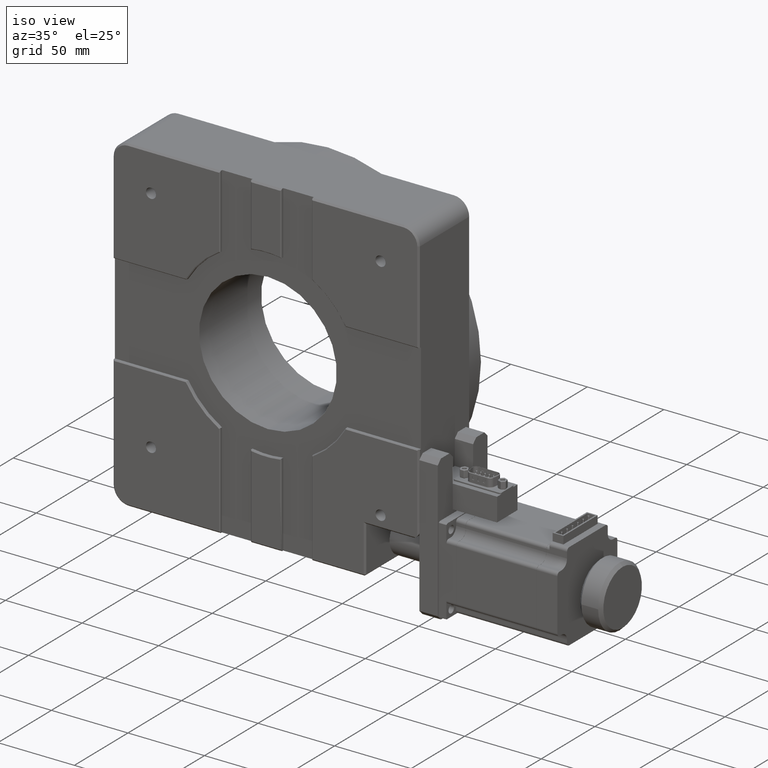
[diagram: clean part render]
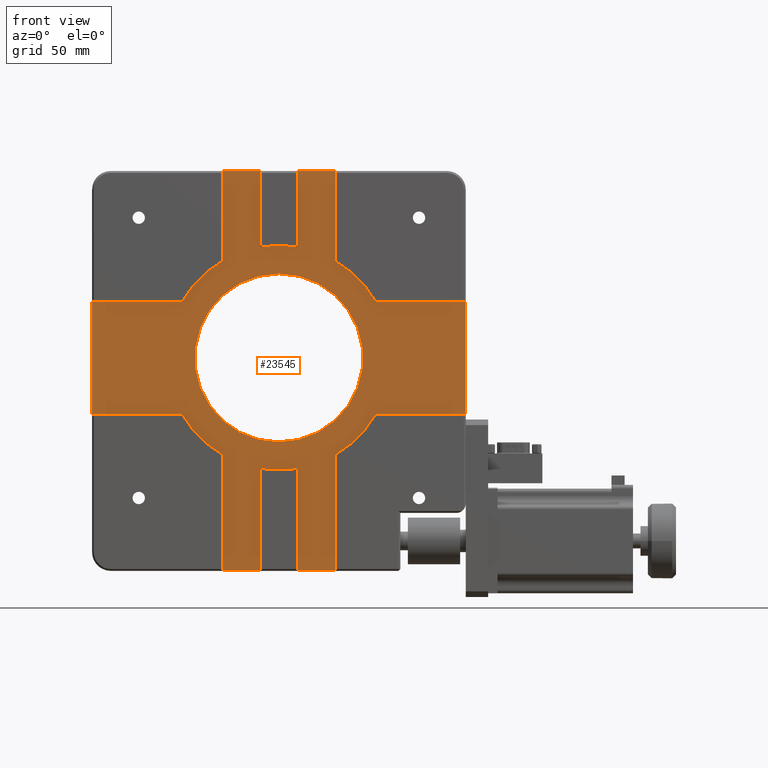
[diagram: tour spotlight — one face highlighted and labeled with its STEP entity id]
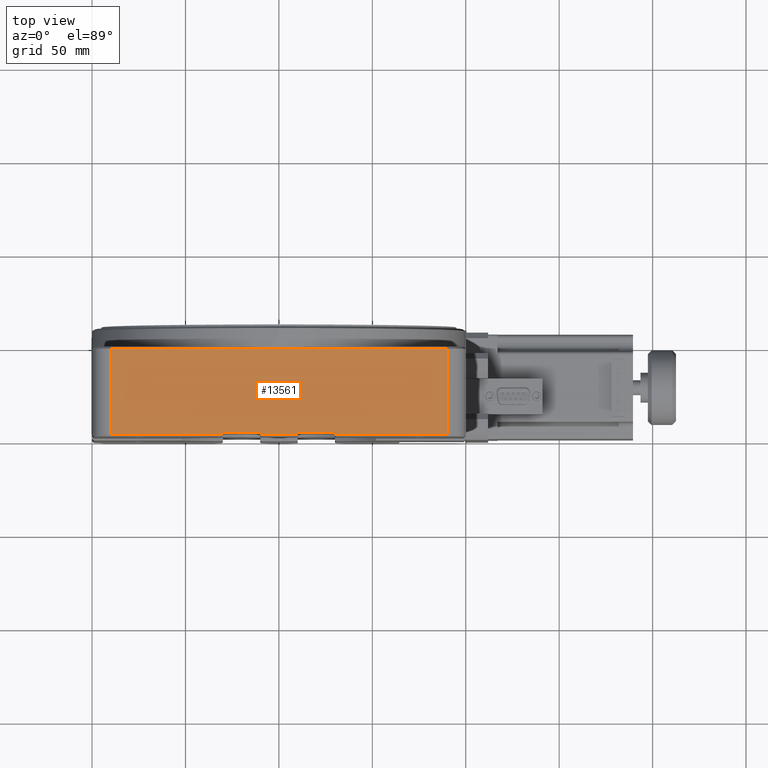
[diagram: tour spotlight — one face highlighted and labeled with its STEP entity id]
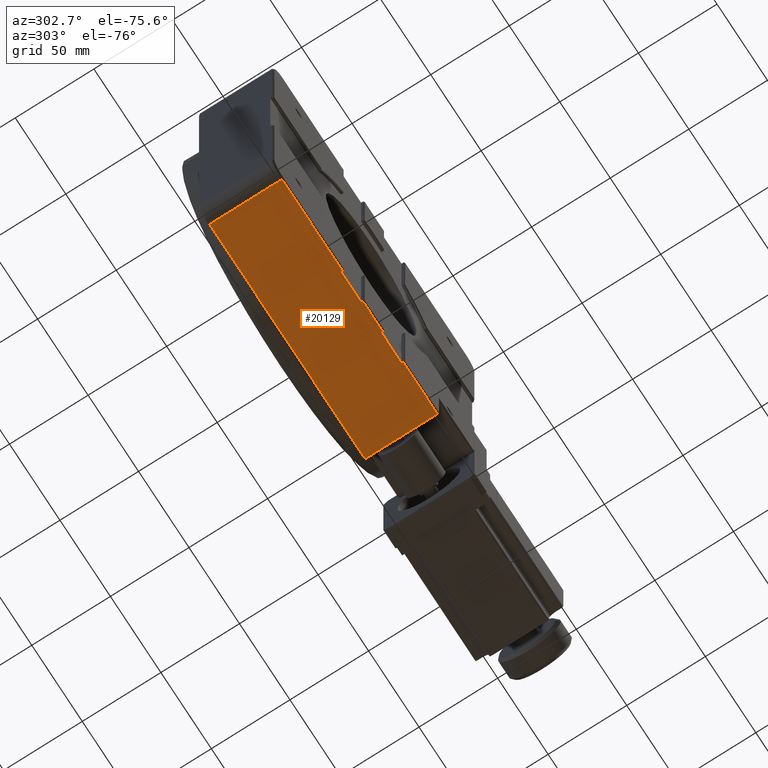
[diagram: tour spotlight — one face highlighted and labeled with its STEP entity id]
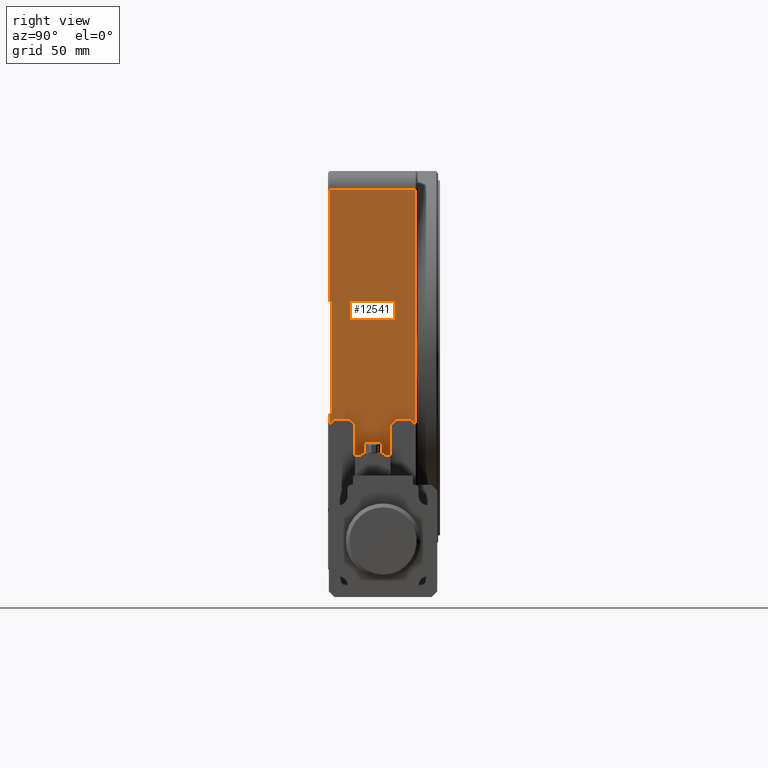
[diagram: tour spotlight — one face highlighted and labeled with its STEP entity id]
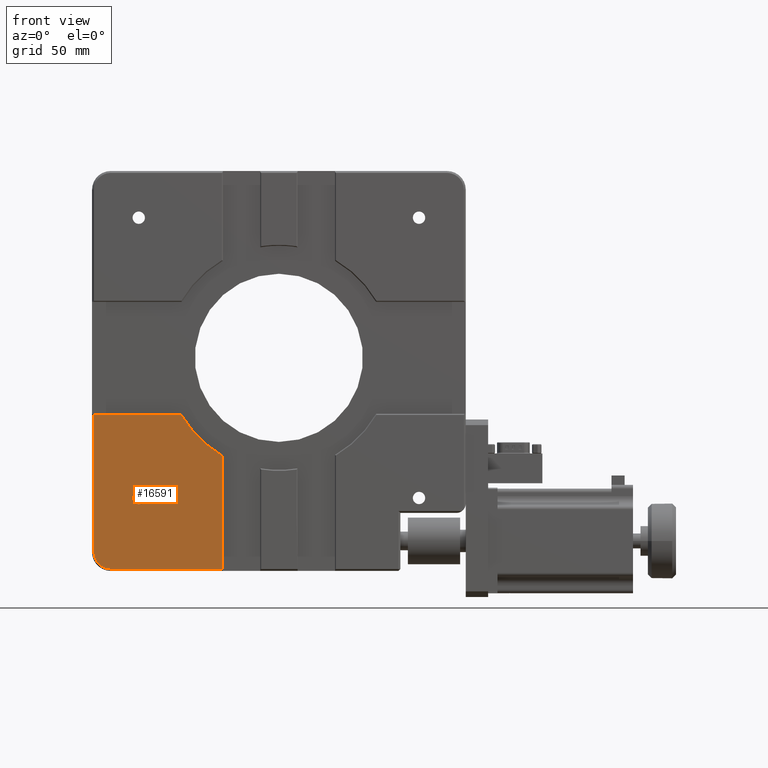
[diagram: tour spotlight — one face highlighted and labeled with its STEP entity id]
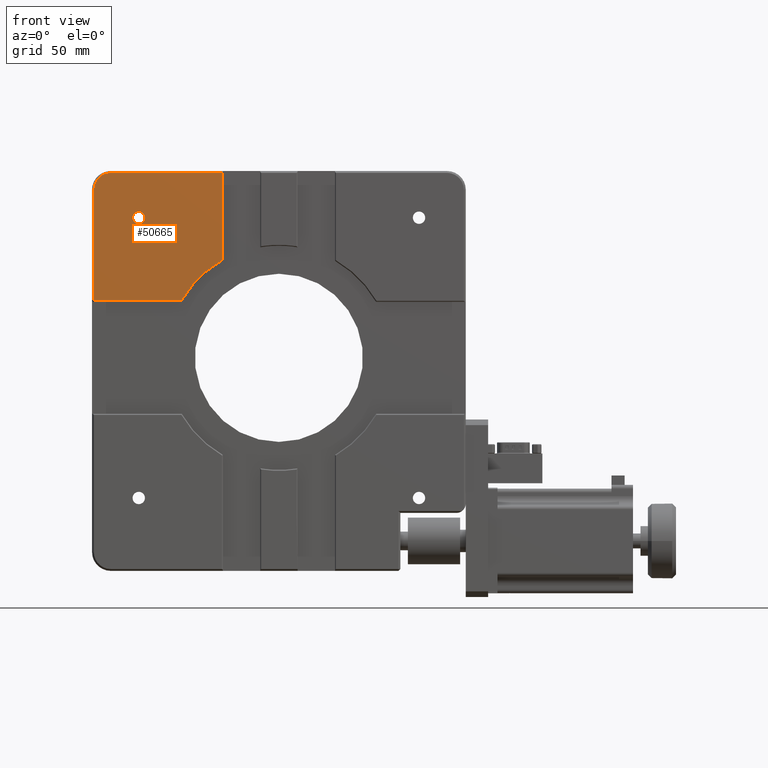
[diagram: tour spotlight — one face highlighted and labeled with its STEP entity id]
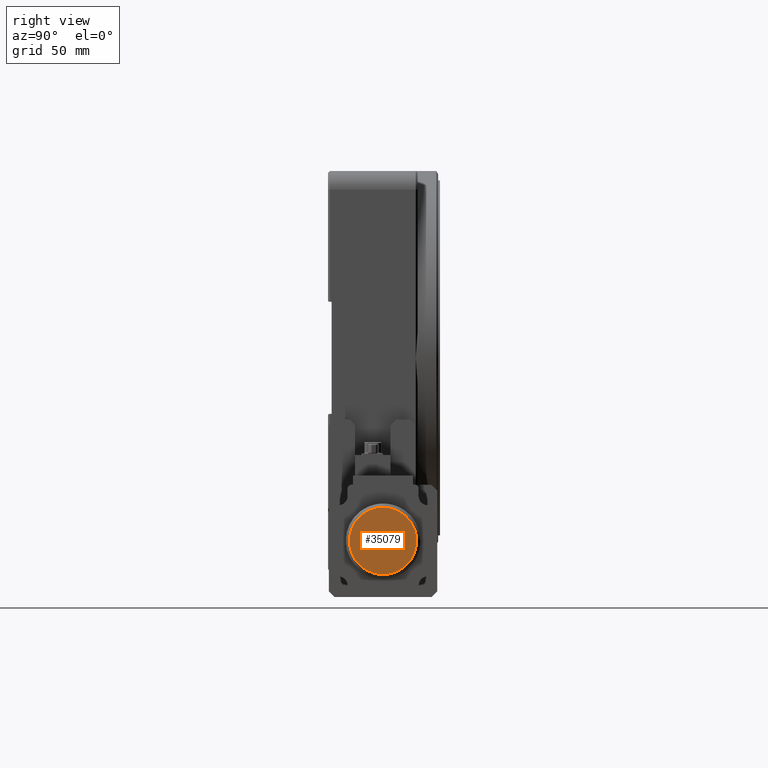
[diagram: tour spotlight — one face highlighted and labeled with its STEP entity id]
A machine part: a face-by-face anatomy tour. The part has 1080 B-rep faces; the first image is the clean iso view, then the 7 largest visible faces are spotlighted one at a time (largest first), each with its STEP entity span.

Face 1 — front view, entity #23545. In plain terms, the highlighted planar face has unit normal (0, -1, 0).
Definition (entity closure, byte-faithful):
#383 = EDGE_CURVE ( 'NONE', #15531, #15208, #16956, .T. ) ;
#593 = ORIENTED_EDGE ( 'NONE', *, *, #29666, .T. ) ;
#601 = EDGE_CURVE ( 'NONE', #5953, #5407, #40663, .T. ) ;
#642 = ORIENTED_EDGE ( 'NONE', *, *, #32109, .T. ) ;
#757 = CARTESIAN_POINT ( 'NONE',  ( 130.0000000000000600, 1.999999999999974900, -100.0000000000000400 ) ) ;
#1072 = DIRECTION ( 'NONE',  ( 2.340531700754225500E-016, -2.048408217643522400E-016, -1.000000000000000000 ) ) ;
#1333 = ORIENTED_EDGE ( 'NONE', *, *, #27896, .T. ) ;
#1630 = VECTOR ( 'NONE', #21531, 1000.000000000000000 ) ;
#1769 = CARTESIAN_POINT ( 'NONE',  ( 200.0000000000000900, 1.999999999999974900, -130.0000000000000000 ) ) ;
#2306 = CARTESIAN_POINT ( 'NONE',  ( 151.9615242270663500, 1.999999999999982700, -70.00000000000001400 ) ) ;
#2533 = DIRECTION ( 'NONE',  ( -2.312964634635743000E-016, 2.023844055306275300E-016, 1.000000000000000000 ) ) ;
#2769 = VERTEX_POINT ( 'NONE', #36574 ) ;
#3261 = EDGE_CURVE ( 'NONE', #2769, #46758, #8608, .T. ) ;
#3930 = DIRECTION ( 'NONE',  ( -2.312964634635743000E-016, 2.023844055306275000E-016, 1.000000000000000000 ) ) ;
#4119 = VERTEX_POINT ( 'NONE', #17393 ) ;
#4397 = DIRECTION ( 'NONE',  ( 8.326672684688670400E-017, -1.000000000000000000, 2.048408217643522700E-016 ) ) ;
#4550 = VERTEX_POINT ( 'NONE', #43004 ) ;
#4762 = CARTESIAN_POINT ( 'NONE',  ( 100.0000000000000600, 1.999999999999972200, -100.0000000000000400 ) ) ;
#4930 = DIRECTION ( 'NONE',  ( -2.340531700754225500E-016, 2.048408217643522400E-016, 1.000000000000000000 ) ) ;
#5258 = VERTEX_POINT ( 'NONE', #37311 ) ;
#5352 = VERTEX_POINT ( 'NONE', #19849 ) ;
#5407 = VERTEX_POINT ( 'NONE', #40025 ) ;
#5480 = LINE ( 'NONE', #48289, #14795 ) ;
#5739 = CIRCLE ( 'NONE', #21827, 59.99999999999999300 ) ;
#5847 = DIRECTION ( 'NONE',  ( -1.000000000000000000, -8.326672684688675300E-017, -2.340531700754225500E-016 ) ) ;
#5953 = VERTEX_POINT ( 'NONE', #20140 ) ;
#6060 = CARTESIAN_POINT ( 'NONE',  ( 1.387778780781445700E-014, 1.999999999999964000, -100.0000000000000700 ) ) ;
#6506 = CIRCLE ( 'NONE', #28976, 45.00000000000000000 ) ;
#7291 = CIRCLE ( 'NONE', #35952, 60.00000000000000000 ) ;
#7881 = VERTEX_POINT ( 'NONE', #43963 ) ;
#7976 = CARTESIAN_POINT ( 'NONE',  ( 70.00000000000005700, 1.999999999999969600, -100.0000000000000600 ) ) ;
#8151 = ORIENTED_EDGE ( 'NONE', *, *, #24564, .T. ) ;
#8210 = VERTEX_POINT ( 'NONE', #18681 ) ;
#8227 = CARTESIAN_POINT ( 'NONE',  ( 70.00000000000007100, 1.999999999999958900, -151.9615242270663800 ) ) ;
#8525 = DIRECTION ( 'NONE',  ( 2.340531700754225500E-016, -2.048408217643522400E-016, -1.000000000000000000 ) ) ;
#8608 = LINE ( 'NONE', #6060, #19839 ) ;
#8697 = VECTOR ( 'NONE', #31648, 1000.000000000000000 ) ;
#8733 = DIRECTION ( 'NONE',  ( -8.326672684688670400E-017, 1.000000000000000000, -2.048408217643522700E-016 ) ) ;
#9332 = CARTESIAN_POINT ( 'NONE',  ( 100.0000000000000600, 1.999999999999972200, -100.0000000000000400 ) ) ;
#9524 = CARTESIAN_POINT ( 'NONE',  ( 70.00000000000002800, 1.999999999999990000, -4.163336342344337000E-014 ) ) ;
#9860 = ORIENTED_EDGE ( 'NONE', *, *, #36997, .T. ) ;
#9972 = LINE ( 'NONE', #21124, #29974 ) ;
#10081 = DIRECTION ( 'NONE',  ( 3.083952846180990300E-016, -2.023844055306275000E-016, -1.000000000000000000 ) ) ;
#10389 = DIRECTION ( 'NONE',  ( 2.340531700754225500E-016, -2.048408217643522400E-016, -1.000000000000000000 ) ) ;
#10687 = CARTESIAN_POINT ( 'NONE',  ( 100.0000000000000600, 1.999999999999972200, -100.0000000000000400 ) ) ;
#10781 = ORIENTED_EDGE ( 'NONE', *, *, #31054, .T. ) ;
#11245 = EDGE_LOOP ( 'NONE', ( #40077, #1333, #39253, #642, #18617, #14963, #11698, #33461, #33869, #50054, #40342, #19534, #593, #10781, #22710, #16108, #9860, #46335, #34487, #42091, #26496, #44121, #18005, #45501, #41718, #29173 ) ) ;
#11309 = DIRECTION ( 'NONE',  ( 2.340531700754225500E-016, -2.048408217643522400E-016, -1.000000000000000000 ) ) ;
#11355 = CARTESIAN_POINT ( 'NONE',  ( 100.0000000000000600, 1.999999999999972200, -100.0000000000000400 ) ) ;
#11698 = ORIENTED_EDGE ( 'NONE', *, *, #44550, .T. ) ;
#11787 = DIRECTION ( 'NONE',  ( -2.312964634635743000E-016, 2.023844055306275000E-016, 1.000000000000000000 ) ) ;
#12095 = VECTOR ( 'NONE', #19054, 1000.000000000000000 ) ;
#12182 = CARTESIAN_POINT ( 'NONE',  ( 90.00000000000008500, 1.999999999999971400, -100.0000000000000400 ) ) ;
#12891 = CARTESIAN_POINT ( 'NONE',  ( 100.0000000000000700, 1.999999999999963100, -145.0000000000000600 ) ) ;
#12940 = DIRECTION ( 'NONE',  ( -1.000000000000000000, -8.326672684688675300E-017, -2.340531700754225500E-016 ) ) ;
#13726 = CARTESIAN_POINT ( 'NONE',  ( 100.0000000000000600, 1.999999999999966200, -130.0000000000000300 ) ) ;
#13969 = VECTOR ( 'NONE', #1072, 1000.000000000000000 ) ;
#14776 = VERTEX_POINT ( 'NONE', #16479 ) ;
#14795 = VECTOR ( 'NONE', #44633, 1000.000000000000000 ) ;
#14963 = ORIENTED_EDGE ( 'NONE', *, *, #29268, .T. ) ;
#15208 = VERTEX_POINT ( 'NONE', #8227 ) ;
#15531 = VERTEX_POINT ( 'NONE', #31069 ) ;
#15539 = DIRECTION ( 'NONE',  ( -2.340531700754225500E-016, 2.048408217643522400E-016, 1.000000000000000000 ) ) ;
#15672 = CARTESIAN_POINT ( 'NONE',  ( 100.0000000000000600, 1.999999999999972200, -100.0000000000000400 ) ) ;
#16000 = CARTESIAN_POINT ( 'NONE',  ( 110.0000000000000600, 1.999999999999973100, -100.0000000000000400 ) ) ;
#16108 = ORIENTED_EDGE ( 'NONE', *, *, #27298, .T. ) ;
#16193 = DIRECTION ( 'NONE',  ( -2.340531700754225500E-016, 2.048408217643522400E-016, 1.000000000000000000 ) ) ;
#16455 = CARTESIAN_POINT ( 'NONE',  ( 100.0000000000000600, 1.999999999999972200, -100.0000000000000400 ) ) ;
#16479 = CARTESIAN_POINT ( 'NONE',  ( 48.03847577293373000, 1.999999999999974000, -70.00000000000007100 ) ) ;
#16723 = DIRECTION ( 'NONE',  ( 3.083952846180990300E-016, -2.023844055306275000E-016, -1.000000000000000000 ) ) ;
#16956 = CIRCLE ( 'NONE', #46133, 60.00000000000000000 ) ;
#17393 = CARTESIAN_POINT ( 'NONE',  ( 90.00000000000009900, 1.999999999999948500, -214.0000000000000300 ) ) ;
#17558 = EDGE_CURVE ( 'NONE', #26224, #4550, #25173, .T. ) ;
#17828 = LINE ( 'NONE', #13726, #37800 ) ;
#17955 = CARTESIAN_POINT ( 'NONE',  ( 200.0000000000000600, 1.999999999999980500, -100.0000000000000100 ) ) ;
#17991 = VERTEX_POINT ( 'NONE', #31635 ) ;
#18005 = ORIENTED_EDGE ( 'NONE', *, *, #35452, .T. ) ;
#18259 = DIRECTION ( 'NONE',  ( -8.326672684688670400E-017, 1.000000000000000000, -2.048408217643522700E-016 ) ) ;
#18466 = AXIS2_PLACEMENT_3D ( 'NONE', #9332, #37363, #25362 ) ;
#18568 = VERTEX_POINT ( 'NONE', #28577 ) ;
#18617 = ORIENTED_EDGE ( 'NONE', *, *, #30828, .T. ) ;
#18681 = CARTESIAN_POINT ( 'NONE',  ( 130.0000000000000300, 1.999999999999995800, -2.775557561562891400E-014 ) ) ;
#19054 = DIRECTION ( 'NONE',  ( 1.000000000000000000, 8.326672684688675300E-017, 2.340531700754225500E-016 ) ) ;
#19224 = CARTESIAN_POINT ( 'NONE',  ( 100.0000000000000300, 1.999999999999992700, -2.775557561562891400E-014 ) ) ;
#19534 = ORIENTED_EDGE ( 'NONE', *, *, #42822, .T. ) ;
#19839 = VECTOR ( 'NONE', #10389, 1000.000000000000000 ) ;
#19849 = CARTESIAN_POINT ( 'NONE',  ( 100.0000000000000400, 1.999999999999981300, -55.00000000000004300 ) ) ;
#20140 = CARTESIAN_POINT ( 'NONE',  ( 90.00000000000008500, 1.999999999999959400, -159.1607978309962200 ) ) ;
#20244 = LINE ( 'NONE', #40279, #50734 ) ;
#20329 = DIRECTION ( 'NONE',  ( 8.326672684688670400E-017, -1.000000000000000000, 2.048408217643522700E-016 ) ) ;
#20413 = VERTEX_POINT ( 'NONE', #12891 ) ;
#20471 = DIRECTION ( 'NONE',  ( -2.312964634635743000E-016, 2.023844055306275000E-016, 1.000000000000000000 ) ) ;
#20535 = LINE ( 'NONE', #19224, #28689 ) ;
#20785 = CARTESIAN_POINT ( 'NONE',  ( 110.0000000000000300, 1.999999999999994000, -2.775557561562891400E-014 ) ) ;
#21124 = CARTESIAN_POINT ( 'NONE',  ( 100.0000000000000400, 1.999999999999978500, -70.00000000000002800 ) ) ;
#21394 = CARTESIAN_POINT ( 'NONE',  ( 70.00000000000005700, 1.999999999999969600, -100.0000000000000600 ) ) ;
#21464 = DIRECTION ( 'NONE',  ( -2.340531700754225500E-016, 2.048408217643522400E-016, 1.000000000000000000 ) ) ;
#21486 = EDGE_CURVE ( 'NONE', #25696, #4119, #20244, .T. ) ;
#21531 = DIRECTION ( 'NONE',  ( -2.340531700754225500E-016, 2.048408217643522400E-016, 1.000000000000000000 ) ) ;
#21827 = AXIS2_PLACEMENT_3D ( 'NONE', #10687, #26206, #2533 ) ;
#22398 = LINE ( 'NONE', #31299, #8697 ) ;
#22653 = EDGE_CURVE ( 'NONE', #40437, #28144, #31846, .T. ) ;
#22710 = ORIENTED_EDGE ( 'NONE', *, *, #22653, .T. ) ;
#22779 = EDGE_LOOP ( 'NONE', ( #8151, #44882 ) ) ;
#22882 = LINE ( 'NONE', #16000, #44041 ) ;
#23267 = EDGE_CURVE ( 'NONE', #5407, #18568, #5480, .T. ) ;
#23545 = ADVANCED_FACE ( 'NONE', ( #47742, #45266 ), #35273, .T. ) ;
#23692 = VECTOR ( 'NONE', #33072, 1000.000000000000000 ) ;
#23759 = CARTESIAN_POINT ( 'NONE',  ( 100.0000000000000600, 1.999999999999972200, -100.0000000000000400 ) ) ;
#23826 = CARTESIAN_POINT ( 'NONE',  ( 100.0000000000000600, 1.999999999999972200, -100.0000000000000400 ) ) ;
#23920 = EDGE_CURVE ( 'NONE', #5352, #20413, #45171, .T. ) ;
#24543 = VERTEX_POINT ( 'NONE', #37095 ) ;
#24564 = EDGE_CURVE ( 'NONE', #20413, #5352, #6506, .T. ) ;
#24674 = DIRECTION ( 'NONE',  ( 8.326672684688670400E-017, -1.000000000000000000, 2.048408217643522700E-016 ) ) ;
#25081 = VECTOR ( 'NONE', #5847, 1000.000000000000000 ) ;
#25173 = CIRCLE ( 'NONE', #34935, 60.00000000000000000 ) ;
#25362 = DIRECTION ( 'NONE',  ( -2.312964634635743000E-016, 2.023844055306275300E-016, 1.000000000000000000 ) ) ;
#25696 = VERTEX_POINT ( 'NONE', #32650 ) ;
#25743 = AXIS2_PLACEMENT_3D ( 'NONE', #4762, #4397, #32310 ) ;
#25767 = DIRECTION ( 'NONE',  ( 1.000000000000000000, 8.326672684688675300E-017, 2.340531700754225500E-016 ) ) ;
#26206 = DIRECTION ( 'NONE',  ( 8.326672684688670400E-017, -1.000000000000000000, 2.048408217643522700E-016 ) ) ;
#26224 = VERTEX_POINT ( 'NONE', #29086 ) ;
#26496 = ORIENTED_EDGE ( 'NONE', *, *, #36528, .T. ) ;
#26816 = CARTESIAN_POINT ( 'NONE',  ( 90.00000000000004300, 1.999999999999992200, -2.775557561562891400E-014 ) ) ;
#27040 = DIRECTION ( 'NONE',  ( -2.312964634635743000E-016, 2.023844055306275000E-016, 1.000000000000000000 ) ) ;
#27298 = EDGE_CURVE ( 'NONE', #28144, #14776, #50166, .T. ) ;
#27603 = DIRECTION ( 'NONE',  ( -1.000000000000000000, -8.326672684688675300E-017, -2.340531700754225500E-016 ) ) ;
#27783 = DIRECTION ( 'NONE',  ( 8.326672684688670400E-017, -1.000000000000000000, 2.048408217643522700E-016 ) ) ;
#27896 = EDGE_CURVE ( 'NONE', #24543, #26224, #36376, .T. ) ;
#28144 = VERTEX_POINT ( 'NONE', #45770 ) ;
#28231 = LINE ( 'NONE', #42085, #30152 ) ;
#28364 = CIRCLE ( 'NONE', #25743, 59.99999999999999300 ) ;
#28577 = CARTESIAN_POINT ( 'NONE',  ( 110.0000000000001100, 1.999999999999950300, -213.0000000000015600 ) ) ;
#28634 = CARTESIAN_POINT ( 'NONE',  ( 100.0000000000000600, 1.999999999999972200, -100.0000000000000400 ) ) ;
#28689 = VECTOR ( 'NONE', #27603, 1000.000000000000000 ) ;
#28744 = VECTOR ( 'NONE', #11309, 1000.000000000000000 ) ;
#28976 = AXIS2_PLACEMENT_3D ( 'NONE', #29823, #18259, #10081 ) ;
#29086 = CARTESIAN_POINT ( 'NONE',  ( 130.0000000000000600, 1.999999999999964000, -151.9615242270663800 ) ) ;
#29173 = ORIENTED_EDGE ( 'NONE', *, *, #31295, .T. ) ;
#29256 = DIRECTION ( 'NONE',  ( 1.000000000000000000, 8.326672684688675300E-017, 2.340531700754225500E-016 ) ) ;
#29268 = EDGE_CURVE ( 'NONE', #47457, #37624, #9972, .T. ) ;
#29358 = LINE ( 'NONE', #44653, #23692 ) ;
#29666 = EDGE_CURVE ( 'NONE', #5258, #46021, #32335, .T. ) ;
#29823 = CARTESIAN_POINT ( 'NONE',  ( 100.0000000000000600, 1.999999999999972200, -100.0000000000000400 ) ) ;
#29974 = VECTOR ( 'NONE', #12940, 1000.000000000000000 ) ;
#30048 = LINE ( 'NONE', #17955, #32558 ) ;
#30117 = LINE ( 'NONE', #49485, #25081 ) ;
#30152 = VECTOR ( 'NONE', #33470, 1000.000000000000000 ) ;
#30807 = VECTOR ( 'NONE', #4930, 1000.000000000000000 ) ;
#30828 = EDGE_CURVE ( 'NONE', #44209, #47457, #30048, .T. ) ;
#31054 = EDGE_CURVE ( 'NONE', #46021, #40437, #29358, .T. ) ;
#31069 = CARTESIAN_POINT ( 'NONE',  ( 48.03847577293376500, 1.999999999999961800, -130.0000000000000900 ) ) ;
#31288 = EDGE_CURVE ( 'NONE', #8210, #39229, #20535, .T. ) ;
#31295 = EDGE_CURVE ( 'NONE', #18568, #38575, #22398, .T. ) ;
#31299 = CARTESIAN_POINT ( 'NONE',  ( 110.0000000000000900, 1.999999999999950300, -213.0000000000000900 ) ) ;
#31635 = CARTESIAN_POINT ( 'NONE',  ( 100.0000000000000400, 1.999999999999984500, -40.00000000000005700 ) ) ;
#31648 = DIRECTION ( 'NONE',  ( 0.01784310513685206200, -2.033224739651869000E-016, -0.9998407991270786800 ) ) ;
#31846 = LINE ( 'NONE', #7976, #28744 ) ;
#32109 = EDGE_CURVE ( 'NONE', #4550, #44209, #17828, .T. ) ;
#32310 = DIRECTION ( 'NONE',  ( -2.312964634635743000E-016, 2.023844055306275300E-016, 1.000000000000000000 ) ) ;
#32335 = LINE ( 'NONE', #12182, #42843 ) ;
#32339 = CARTESIAN_POINT ( 'NONE',  ( 4.163336342344337000E-014, 1.999999999999958000, -130.0000000000000900 ) ) ;
#32558 = VECTOR ( 'NONE', #21464, 1000.000000000000000 ) ;
#32650 = CARTESIAN_POINT ( 'NONE',  ( 70.00000000000008500, 1.999999999999946700, -214.0000000000000300 ) ) ;
#32744 = EDGE_CURVE ( 'NONE', #38575, #24543, #37004, .T. ) ;
#32882 = CARTESIAN_POINT ( 'NONE',  ( 130.0000000000000600, 1.999999999999985800, -48.03847577293372200 ) ) ;
#33072 = DIRECTION ( 'NONE',  ( -1.000000000000000000, -8.326672684688675300E-017, -2.340531700754225500E-016 ) ) ;
#33254 = CARTESIAN_POINT ( 'NONE',  ( 100.0000000000000600, 1.999999999999966200, -130.0000000000000600 ) ) ;
#33461 = ORIENTED_EDGE ( 'NONE', *, *, #40425, .T. ) ;
#33470 = DIRECTION ( 'NONE',  ( -2.340531700754225500E-016, 2.048408217643522400E-016, 1.000000000000000000 ) ) ;
#33869 = ORIENTED_EDGE ( 'NONE', *, *, #31288, .T. ) ;
#34487 = ORIENTED_EDGE ( 'NONE', *, *, #40282, .T. ) ;
#34935 = AXIS2_PLACEMENT_3D ( 'NONE', #16455, #24674, #20471 ) ;
#35273 = PLANE ( 'NONE',  #41186 ) ;
#35452 = EDGE_CURVE ( 'NONE', #4119, #5953, #28231, .T. ) ;
#35952 = AXIS2_PLACEMENT_3D ( 'NONE', #23826, #20329, #11787 ) ;
#36323 = DIRECTION ( 'NONE',  ( 1.000000000000000000, 8.326672684688675300E-017, 2.340531700754225500E-016 ) ) ;
#36376 = LINE ( 'NONE', #757, #30807 ) ;
#36528 = EDGE_CURVE ( 'NONE', #15208, #25696, #45724, .T. ) ;
#36549 = VECTOR ( 'NONE', #29256, 1000.000000000000000 ) ;
#36574 = CARTESIAN_POINT ( 'NONE',  ( 0.0000000000000000000, 1.999999999999970500, -70.00000000000008500 ) ) ;
#36997 = EDGE_CURVE ( 'NONE', #14776, #2769, #30117, .T. ) ;
#37004 = LINE ( 'NONE', #43258, #12095 ) ;
#37095 = CARTESIAN_POINT ( 'NONE',  ( 130.0000000000000900, 1.999999999999951400, -214.0000000000000300 ) ) ;
#37311 = CARTESIAN_POINT ( 'NONE',  ( 90.00000000000007100, 1.999999999999983600, -40.83920216900388300 ) ) ;
#37363 = DIRECTION ( 'NONE',  ( 8.326672684688670400E-017, -1.000000000000000000, 2.048408217643522700E-016 ) ) ;
#37624 = VERTEX_POINT ( 'NONE', #2306 ) ;
#37731 = CARTESIAN_POINT ( 'NONE',  ( 130.0000000000000600, 1.999999999999974900, -100.0000000000000400 ) ) ;
#37800 = VECTOR ( 'NONE', #25767, 1000.000000000000000 ) ;
#38575 = VERTEX_POINT ( 'NONE', #39474 ) ;
#39229 = VERTEX_POINT ( 'NONE', #20785 ) ;
#39253 = ORIENTED_EDGE ( 'NONE', *, *, #17558, .T. ) ;
#39474 = CARTESIAN_POINT ( 'NONE',  ( 110.0178459462271500, 1.999999999999949800, -214.0000000000000300 ) ) ;
#39606 = LINE ( 'NONE', #37731, #1630 ) ;
#40025 = CARTESIAN_POINT ( 'NONE',  ( 110.0000000000000700, 1.999999999999960900, -159.1607978309961900 ) ) ;
#40077 = ORIENTED_EDGE ( 'NONE', *, *, #32744, .T. ) ;
#40179 = AXIS2_PLACEMENT_3D ( 'NONE', #28634, #8733, #16723 ) ;
#40279 = CARTESIAN_POINT ( 'NONE',  ( 100.0000000000000900, 1.999999999999948900, -214.0000000000000300 ) ) ;
#40282 = EDGE_CURVE ( 'NONE', #46758, #15531, #47730, .T. ) ;
#40342 = ORIENTED_EDGE ( 'NONE', *, *, #45470, .T. ) ;
#40425 = EDGE_CURVE ( 'NONE', #41136, #8210, #39606, .T. ) ;
#40437 = VERTEX_POINT ( 'NONE', #9524 ) ;
#40663 = CIRCLE ( 'NONE', #18466, 59.99999999999999300 ) ;
#41136 = VERTEX_POINT ( 'NONE', #32882 ) ;
#41186 = AXIS2_PLACEMENT_3D ( 'NONE', #11355, #46851, #15539 ) ;
#41718 = ORIENTED_EDGE ( 'NONE', *, *, #23267, .T. ) ;
#42085 = CARTESIAN_POINT ( 'NONE',  ( 90.00000000000007100, 1.999999999999971400, -100.0000000000000400 ) ) ;
#42091 = ORIENTED_EDGE ( 'NONE', *, *, #383, .T. ) ;
#42822 = EDGE_CURVE ( 'NONE', #17991, #5258, #5739, .T. ) ;
#42843 = VECTOR ( 'NONE', #16193, 1000.000000000000000 ) ;
#43004 = CARTESIAN_POINT ( 'NONE',  ( 151.9615242270663800, 1.999999999999970500, -130.0000000000000300 ) ) ;
#43009 = DIRECTION ( 'NONE',  ( 8.326672684688670400E-017, -1.000000000000000000, 2.048408217643522700E-016 ) ) ;
#43258 = CARTESIAN_POINT ( 'NONE',  ( 100.0000000000000900, 1.999999999999948900, -214.0000000000000300 ) ) ;
#43963 = CARTESIAN_POINT ( 'NONE',  ( 110.0000000000000700, 1.999999999999985300, -40.83920216900389700 ) ) ;
#44041 = VECTOR ( 'NONE', #8525, 1000.000000000000000 ) ;
#44121 = ORIENTED_EDGE ( 'NONE', *, *, #21486, .T. ) ;
#44209 = VERTEX_POINT ( 'NONE', #1769 ) ;
#44550 = EDGE_CURVE ( 'NONE', #37624, #41136, #7291, .T. ) ;
#44633 = DIRECTION ( 'NONE',  ( 2.340531700754225500E-016, -2.048408217643522400E-016, -1.000000000000000000 ) ) ;
#44653 = CARTESIAN_POINT ( 'NONE',  ( 100.0000000000000300, 1.999999999999992700, -2.775557561562891400E-014 ) ) ;
#44706 = CARTESIAN_POINT ( 'NONE',  ( 200.0000000000000600, 1.999999999999986700, -70.00000000000000000 ) ) ;
#44882 = ORIENTED_EDGE ( 'NONE', *, *, #23920, .T. ) ;
#45171 = CIRCLE ( 'NONE', #40179, 45.00000000000000000 ) ;
#45266 = FACE_OUTER_BOUND ( 'NONE', #11245, .T. ) ;
#45470 = EDGE_CURVE ( 'NONE', #7881, #17991, #28364, .T. ) ;
#45501 = ORIENTED_EDGE ( 'NONE', *, *, #601, .T. ) ;
#45724 = LINE ( 'NONE', #21394, #13969 ) ;
#45770 = CARTESIAN_POINT ( 'NONE',  ( 70.00000000000004300, 1.999999999999980500, -48.03847577293373700 ) ) ;
#46021 = VERTEX_POINT ( 'NONE', #26816 ) ;
#46133 = AXIS2_PLACEMENT_3D ( 'NONE', #15672, #43009, #27040 ) ;
#46335 = ORIENTED_EDGE ( 'NONE', *, *, #3261, .T. ) ;
#46758 = VERTEX_POINT ( 'NONE', #32339 ) ;
#46851 = DIRECTION ( 'NONE',  ( 8.326672684688670400E-017, -1.000000000000000000, 2.048408217643522700E-016 ) ) ;
#47367 = EDGE_CURVE ( 'NONE', #39229, #7881, #22882, .T. ) ;
#47457 = VERTEX_POINT ( 'NONE', #44706 ) ;
#47730 = LINE ( 'NONE', #33254, #36549 ) ;
#47742 = FACE_BOUND ( 'NONE', #22779, .T. ) ;
#48289 = CARTESIAN_POINT ( 'NONE',  ( 110.0000000000000600, 1.999999999999973100, -100.0000000000000400 ) ) ;
#48800 = AXIS2_PLACEMENT_3D ( 'NONE', #23759, #27783, #3930 ) ;
#49485 = CARTESIAN_POINT ( 'NONE',  ( 100.0000000000000400, 1.999999999999978500, -70.00000000000005700 ) ) ;
#50054 = ORIENTED_EDGE ( 'NONE', *, *, #47367, .T. ) ;
#50166 = CIRCLE ( 'NONE', #48800, 60.00000000000000000 ) ;
#50734 = VECTOR ( 'NONE', #36323, 1000.000000000000000 ) ;

Face 2 — top view, entity #13561. In plain terms, the highlighted planar face has unit normal (0, -0, -1).
Definition (entity closure, byte-faithful):
#178 = EDGE_CURVE ( 'NONE', #6654, #36957, #43790, .T. ) ;
#250 = EDGE_CURVE ( 'NONE', #46770, #37561, #46305, .T. ) ;
#735 = DIRECTION ( 'NONE',  ( -8.326672684688670400E-017, 1.000000000000000000, -2.048408217643522700E-016 ) ) ;
#1802 = CARTESIAN_POINT ( 'NONE',  ( 200.0000000000000600, 0.9999999999999740200, -1.387778780781445700E-014 ) ) ;
#1816 = CARTESIAN_POINT ( 'NONE',  ( 190.0000000000000600, 47.00000000000003600, -2.775557561562891400E-014 ) ) ;
#2424 = LINE ( 'NONE', #3861, #39751 ) ;
#3656 = DIRECTION ( 'NONE',  ( -1.000000000000000000, -8.326672684688672800E-017, -9.527529199727802700E-017 ) ) ;
#3861 = CARTESIAN_POINT ( 'NONE',  ( 200.0000000000000600, 47.00000000000002800, -2.775557561562891400E-014 ) ) ;
#3972 = VECTOR ( 'NONE', #50059, 1000.000000000000000 ) ;
#4058 = ORIENTED_EDGE ( 'NONE', *, *, #48262, .F. ) ;
#4213 = CARTESIAN_POINT ( 'NONE',  ( 110.0000000000000300, 47.99999999999999300, -4.163336342344337000E-014 ) ) ;
#5438 = CARTESIAN_POINT ( 'NONE',  ( 9.999999999999939600, 0.9999999999999590300, -5.551115123125782700E-014 ) ) ;
#5861 = ORIENTED_EDGE ( 'NONE', *, *, #33004, .F. ) ;
#6341 = DIRECTION ( 'NONE',  ( -1.000000000000000000, -8.326672684688672800E-017, -9.527529199727802700E-017 ) ) ;
#6654 = VERTEX_POINT ( 'NONE', #1816 ) ;
#6991 = ORIENTED_EDGE ( 'NONE', *, *, #178, .F. ) ;
#7062 = EDGE_CURVE ( 'NONE', #42292, #46021, #32121, .T. ) ;
#7317 = VECTOR ( 'NONE', #45231, 1000.000000000000000 ) ;
#7733 = CARTESIAN_POINT ( 'NONE',  ( 200.0000000000000600, 0.9999999999999462700, -1.387778780781445700E-014 ) ) ;
#7836 = DIRECTION ( 'NONE',  ( 8.326672684688670400E-017, -1.000000000000000000, 2.048408217643522700E-016 ) ) ;
#8210 = VERTEX_POINT ( 'NONE', #18681 ) ;
#8433 = CARTESIAN_POINT ( 'NONE',  ( 110.0000000000000300, 0.9999999999999733500, -2.775557561562891400E-014 ) ) ;
#8764 = CARTESIAN_POINT ( 'NONE',  ( 130.0000000000000300, 47.99999999999999300, -2.775557561562891400E-014 ) ) ;
#9524 = CARTESIAN_POINT ( 'NONE',  ( 70.00000000000002800, 1.999999999999990000, -4.163336342344337000E-014 ) ) ;
#9896 = VECTOR ( 'NONE', #7836, 1000.000000000000000 ) ;
#10357 = CARTESIAN_POINT ( 'NONE',  ( 9.999999999999980500, 47.00000000000001400, -4.163336342344337000E-014 ) ) ;
#10681 = CARTESIAN_POINT ( 'NONE',  ( 200.0000000000000600, 0.9999999999999809000, -1.387778780781445700E-014 ) ) ;
#12018 = VECTOR ( 'NONE', #45807, 1000.000000000000000 ) ;
#12180 = VECTOR ( 'NONE', #35469, 1000.000000000000000 ) ;
#12594 = DIRECTION ( 'NONE',  ( -8.326672684688670400E-017, 1.000000000000000000, -2.048408217643522700E-016 ) ) ;
#13139 = EDGE_CURVE ( 'NONE', #39229, #21577, #14899, .T. ) ;
#13561 = ADVANCED_FACE ( 'NONE', ( #31046 ), #22435, .F. ) ;
#14311 = ORIENTED_EDGE ( 'NONE', *, *, #13139, .F. ) ;
#14709 = DIRECTION ( 'NONE',  ( -8.326672684688670400E-017, 1.000000000000000000, -2.048408217643522700E-016 ) ) ;
#14899 = LINE ( 'NONE', #4213, #9896 ) ;
#15786 = CARTESIAN_POINT ( 'NONE',  ( 200.0000000000000600, 48.00000000000000000, -2.775557561562891400E-014 ) ) ;
#16456 = VECTOR ( 'NONE', #735, 1000.000000000000000 ) ;
#17623 = VECTOR ( 'NONE', #29538, 1000.000000000000000 ) ;
#18348 = LINE ( 'NONE', #30143, #3972 ) ;
#18545 = CARTESIAN_POINT ( 'NONE',  ( 70.00000000000002800, 1.999999999999990000, -4.163336342344337000E-014 ) ) ;
#18681 = CARTESIAN_POINT ( 'NONE',  ( 130.0000000000000300, 1.999999999999995800, -2.775557561562891400E-014 ) ) ;
#19221 = LINE ( 'NONE', #18545, #42243 ) ;
#19224 = CARTESIAN_POINT ( 'NONE',  ( 100.0000000000000300, 1.999999999999992700, -2.775557561562891400E-014 ) ) ;
#19360 = ORIENTED_EDGE ( 'NONE', *, *, #26482, .T. ) ;
#19507 = DIRECTION ( 'NONE',  ( 1.000000000000000000, 8.326672684688672800E-017, 9.527529199727802700E-017 ) ) ;
#19570 = LINE ( 'NONE', #8764, #33950 ) ;
#20418 = ORIENTED_EDGE ( 'NONE', *, *, #7062, .F. ) ;
#20535 = LINE ( 'NONE', #19224, #28689 ) ;
#20785 = CARTESIAN_POINT ( 'NONE',  ( 110.0000000000000300, 1.999999999999994000, -2.775557561562891400E-014 ) ) ;
#21577 = VERTEX_POINT ( 'NONE', #8433 ) ;
#21802 = ORIENTED_EDGE ( 'NONE', *, *, #31054, .F. ) ;
#22242 = LINE ( 'NONE', #41395, #7317 ) ;
#22435 = PLANE ( 'NONE',  #28295 ) ;
#23246 = CARTESIAN_POINT ( 'NONE',  ( 70.00000000000001400, 0.9999999999999660300, -4.163336342344337000E-014 ) ) ;
#23473 = DIRECTION ( 'NONE',  ( 9.527529199727804000E-017, -2.048408217643522400E-016, -1.000000000000000000 ) ) ;
#23474 = EDGE_CURVE ( 'NONE', #21577, #42292, #37799, .T. ) ;
#23692 = VECTOR ( 'NONE', #33072, 1000.000000000000000 ) ;
#24095 = VECTOR ( 'NONE', #6341, 1000.000000000000000 ) ;
#24372 = ORIENTED_EDGE ( 'NONE', *, *, #23474, .F. ) ;
#24465 = EDGE_CURVE ( 'NONE', #33644, #6654, #18348, .T. ) ;
#26482 = EDGE_CURVE ( 'NONE', #46770, #40437, #19221, .T. ) ;
#26816 = CARTESIAN_POINT ( 'NONE',  ( 90.00000000000004300, 1.999999999999992200, -2.775557561562891400E-014 ) ) ;
#27387 = ORIENTED_EDGE ( 'NONE', *, *, #24465, .F. ) ;
#27603 = DIRECTION ( 'NONE',  ( -1.000000000000000000, -8.326672684688675300E-017, -2.340531700754225500E-016 ) ) ;
#28295 = AXIS2_PLACEMENT_3D ( 'NONE', #15786, #23473, #3656 ) ;
#28689 = VECTOR ( 'NONE', #27603, 1000.000000000000000 ) ;
#29358 = LINE ( 'NONE', #44653, #23692 ) ;
#29363 = CARTESIAN_POINT ( 'NONE',  ( 190.0000000000000600, 48.00000000000000000, -2.775557561562891400E-014 ) ) ;
#29538 = DIRECTION ( 'NONE',  ( 8.326672684688670400E-017, -1.000000000000000000, 2.048408217643522700E-016 ) ) ;
#30143 = CARTESIAN_POINT ( 'NONE',  ( 200.0000000000000600, 47.00000000000004300, -2.775557561562891400E-014 ) ) ;
#30414 = ORIENTED_EDGE ( 'NONE', *, *, #47234, .F. ) ;
#31046 = FACE_OUTER_BOUND ( 'NONE', #49442, .T. ) ;
#31054 = EDGE_CURVE ( 'NONE', #46021, #40437, #29358, .T. ) ;
#31288 = EDGE_CURVE ( 'NONE', #8210, #39229, #20535, .T. ) ;
#31689 = ORIENTED_EDGE ( 'NONE', *, *, #31288, .F. ) ;
#32121 = LINE ( 'NONE', #48022, #16456 ) ;
#33004 = EDGE_CURVE ( 'NONE', #46924, #8210, #19570, .T. ) ;
#33014 = CARTESIAN_POINT ( 'NONE',  ( 130.0000000000000300, 0.9999999999999426000, -2.775557561562891400E-014 ) ) ;
#33072 = DIRECTION ( 'NONE',  ( -1.000000000000000000, -8.326672684688675300E-017, -2.340531700754225500E-016 ) ) ;
#33644 = VERTEX_POINT ( 'NONE', #46884 ) ;
#33950 = VECTOR ( 'NONE', #12594, 1000.000000000000000 ) ;
#35469 = DIRECTION ( 'NONE',  ( -1.000000000000000000, -8.326672684688672800E-017, -9.527529199727802700E-017 ) ) ;
#35647 = VERTEX_POINT ( 'NONE', #10357 ) ;
#36338 = CARTESIAN_POINT ( 'NONE',  ( 190.0000000000000600, 0.9999999999999440400, -1.387778780781445700E-014 ) ) ;
#36957 = VERTEX_POINT ( 'NONE', #36338 ) ;
#37561 = VERTEX_POINT ( 'NONE', #5438 ) ;
#37799 = LINE ( 'NONE', #10681, #24095 ) ;
#38085 = CARTESIAN_POINT ( 'NONE',  ( 90.00000000000004300, 0.9999999999999713600, -2.775557561562891400E-014 ) ) ;
#39229 = VERTEX_POINT ( 'NONE', #20785 ) ;
#39751 = VECTOR ( 'NONE', #19507, 1000.000000000000000 ) ;
#40437 = VERTEX_POINT ( 'NONE', #9524 ) ;
#41395 = CARTESIAN_POINT ( 'NONE',  ( 9.999999999999968000, 47.99999999999998600, -4.163336342344337000E-014 ) ) ;
#41467 = LINE ( 'NONE', #7733, #12180 ) ;
#42243 = VECTOR ( 'NONE', #14709, 1000.000000000000000 ) ;
#42292 = VERTEX_POINT ( 'NONE', #38085 ) ;
#43790 = LINE ( 'NONE', #29363, #17623 ) ;
#44653 = CARTESIAN_POINT ( 'NONE',  ( 100.0000000000000300, 1.999999999999992700, -2.775557561562891400E-014 ) ) ;
#45231 = DIRECTION ( 'NONE',  ( -8.326672684688670400E-017, 1.000000000000000000, -2.048408217643522700E-016 ) ) ;
#45807 = DIRECTION ( 'NONE',  ( -1.000000000000000000, -8.326672684688672800E-017, -9.527529199727802700E-017 ) ) ;
#46021 = VERTEX_POINT ( 'NONE', #26816 ) ;
#46305 = LINE ( 'NONE', #1802, #12018 ) ;
#46770 = VERTEX_POINT ( 'NONE', #23246 ) ;
#46884 = CARTESIAN_POINT ( 'NONE',  ( 100.0000000000000400, 47.00000000000003600, -5.551115123125782700E-014 ) ) ;
#46924 = VERTEX_POINT ( 'NONE', #33014 ) ;
#47234 = EDGE_CURVE ( 'NONE', #35647, #33644, #2424, .T. ) ;
#47366 = ORIENTED_EDGE ( 'NONE', *, *, #250, .F. ) ;
#47603 = EDGE_CURVE ( 'NONE', #37561, #35647, #22242, .T. ) ;
#48022 = CARTESIAN_POINT ( 'NONE',  ( 90.00000000000002800, 47.99999999999999300, -4.163336342344337000E-014 ) ) ;
#48262 = EDGE_CURVE ( 'NONE', #36957, #46924, #41467, .T. ) ;
#49442 = EDGE_LOOP ( 'NONE', ( #31689, #5861, #4058, #6991, #27387, #30414, #50001, #47366, #19360, #21802, #20418, #24372, #14311 ) ) ;
#50001 = ORIENTED_EDGE ( 'NONE', *, *, #47603, .F. ) ;
#50059 = DIRECTION ( 'NONE',  ( 1.000000000000000000, 8.326672684688672800E-017, 9.527529199727802700E-017 ) ) ;

Face 3 — auxiliary view, entity #20129. In plain terms, the highlighted planar face has unit normal (-0, 0, 1).
Definition (entity closure, byte-faithful):
#1257 = ORIENTED_EDGE ( 'NONE', *, *, #26052, .T. ) ;
#2113 = ORIENTED_EDGE ( 'NONE', *, *, #31608, .F. ) ;
#3320 = ORIENTED_EDGE ( 'NONE', *, *, #37369, .F. ) ;
#3492 = LINE ( 'NONE', #25524, #30293 ) ;
#3579 = LINE ( 'NONE', #13225, #12861 ) ;
#3992 = CARTESIAN_POINT ( 'NONE',  ( 164.0000000000000900, 0.9999999999999285000, -214.0000000000000300 ) ) ;
#4119 = VERTEX_POINT ( 'NONE', #17393 ) ;
#4236 = LINE ( 'NONE', #39538, #39069 ) ;
#5816 = CARTESIAN_POINT ( 'NONE',  ( 10.00000000000005000, 47.99999999999994300, -214.0000000000000300 ) ) ;
#5840 = ORIENTED_EDGE ( 'NONE', *, *, #11302, .F. ) ;
#6018 = ORIENTED_EDGE ( 'NONE', *, *, #21486, .F. ) ;
#6173 = DIRECTION ( 'NONE',  ( 1.000000000000000000, 8.326672684688672800E-017, 9.527529199727800300E-017 ) ) ;
#7403 = VECTOR ( 'NONE', #37685, 1000.000000000000000 ) ;
#7865 = DIRECTION ( 'NONE',  ( 1.000000000000000000, 8.326672684688672800E-017, 9.527529199727800300E-017 ) ) ;
#8667 = CARTESIAN_POINT ( 'NONE',  ( 200.0000000000000600, 0.9999999999999301700, -214.0000000000000300 ) ) ;
#8931 = VECTOR ( 'NONE', #9023, 1000.000000000000000 ) ;
#9023 = DIRECTION ( 'NONE',  ( 1.000000000000000000, 8.326672684688672800E-017, 9.527529199727800300E-017 ) ) ;
#10455 = LINE ( 'NONE', #33645, #35425 ) ;
#11302 = EDGE_CURVE ( 'NONE', #16146, #19930, #29892, .T. ) ;
#12095 = VECTOR ( 'NONE', #19054, 1000.000000000000000 ) ;
#12476 = VECTOR ( 'NONE', #28734, 1000.000000000000000 ) ;
#12861 = VECTOR ( 'NONE', #25094, 1000.000000000000000 ) ;
#13225 = CARTESIAN_POINT ( 'NONE',  ( 164.0000000000000900, 47.99999999999995700, -214.0000000000000300 ) ) ;
#13359 = EDGE_CURVE ( 'NONE', #4119, #47230, #10455, .T. ) ;
#13713 = LINE ( 'NONE', #19720, #40484 ) ;
#14847 = VECTOR ( 'NONE', #38328, 1000.000000000000000 ) ;
#15470 = VERTEX_POINT ( 'NONE', #25655 ) ;
#15758 = EDGE_LOOP ( 'NONE', ( #6018, #20755, #21100, #2113, #5840, #18340, #3320, #1257, #17949, #18921, #32926, #39383 ) ) ;
#16089 = LINE ( 'NONE', #5816, #14847 ) ;
#16146 = VERTEX_POINT ( 'NONE', #43123 ) ;
#16198 = CARTESIAN_POINT ( 'NONE',  ( 70.00000000000009900, 47.99999999999995000, -214.0000000000000300 ) ) ;
#16223 = LINE ( 'NONE', #46954, #12476 ) ;
#17393 = CARTESIAN_POINT ( 'NONE',  ( 90.00000000000009900, 1.999999999999948500, -214.0000000000000300 ) ) ;
#17949 = ORIENTED_EDGE ( 'NONE', *, *, #32744, .F. ) ;
#18340 = ORIENTED_EDGE ( 'NONE', *, *, #39829, .F. ) ;
#18921 = ORIENTED_EDGE ( 'NONE', *, *, #34493, .T. ) ;
#19054 = DIRECTION ( 'NONE',  ( 1.000000000000000000, 8.326672684688675300E-017, 2.340531700754225500E-016 ) ) ;
#19720 = CARTESIAN_POINT ( 'NONE',  ( 200.0000000000000600, 0.9999999999999301700, -214.0000000000000300 ) ) ;
#19930 = VERTEX_POINT ( 'NONE', #32724 ) ;
#20129 = ADVANCED_FACE ( 'NONE', ( #20521 ), #37693, .F. ) ;
#20244 = LINE ( 'NONE', #40279, #50734 ) ;
#20521 = FACE_OUTER_BOUND ( 'NONE', #15758, .T. ) ;
#20755 = ORIENTED_EDGE ( 'NONE', *, *, #39603, .F. ) ;
#21100 = ORIENTED_EDGE ( 'NONE', *, *, #28434, .F. ) ;
#21486 = EDGE_CURVE ( 'NONE', #25696, #4119, #20244, .T. ) ;
#22899 = CARTESIAN_POINT ( 'NONE',  ( 110.0178459462271500, 0.9999999999999228400, -214.0000000000000300 ) ) ;
#23881 = DIRECTION ( 'NONE',  ( 1.000000000000000000, 8.326672684688672800E-017, 9.527529199727800300E-017 ) ) ;
#24543 = VERTEX_POINT ( 'NONE', #37095 ) ;
#24823 = VERTEX_POINT ( 'NONE', #47984 ) ;
#25094 = DIRECTION ( 'NONE',  ( -8.326672684688670400E-017, 1.000000000000000000, -2.048408217643522700E-016 ) ) ;
#25251 = DIRECTION ( 'NONE',  ( 8.326672684688670400E-017, -1.000000000000000000, 2.048408217643522700E-016 ) ) ;
#25524 = CARTESIAN_POINT ( 'NONE',  ( 110.0178459462271500, 1.999999999999949800, -214.0000000000000300 ) ) ;
#25655 = CARTESIAN_POINT ( 'NONE',  ( 70.00000000000009900, 0.9999999999999196200, -214.0000000000000300 ) ) ;
#25696 = VERTEX_POINT ( 'NONE', #32650 ) ;
#26027 = LINE ( 'NONE', #16198, #36626 ) ;
#26052 = EDGE_CURVE ( 'NONE', #47588, #24543, #16223, .T. ) ;
#28246 = LINE ( 'NONE', #8667, #8931 ) ;
#28434 = EDGE_CURVE ( 'NONE', #24823, #15470, #28246, .T. ) ;
#28734 = DIRECTION ( 'NONE',  ( -8.326672684688670400E-017, 1.000000000000000000, -2.048408217643522700E-016 ) ) ;
#29732 = CARTESIAN_POINT ( 'NONE',  ( 200.0000000000000600, 46.99999999999998600, -214.0000000000000300 ) ) ;
#29892 = LINE ( 'NONE', #29732, #7403 ) ;
#30293 = VECTOR ( 'NONE', #41677, 1000.000000000000000 ) ;
#31608 = EDGE_CURVE ( 'NONE', #19930, #24823, #16089, .T. ) ;
#32650 = CARTESIAN_POINT ( 'NONE',  ( 70.00000000000008500, 1.999999999999946700, -214.0000000000000300 ) ) ;
#32724 = CARTESIAN_POINT ( 'NONE',  ( 10.00000000000005000, 46.99999999999997200, -214.0000000000000300 ) ) ;
#32744 = EDGE_CURVE ( 'NONE', #38575, #24543, #37004, .T. ) ;
#32926 = ORIENTED_EDGE ( 'NONE', *, *, #43962, .F. ) ;
#33645 = CARTESIAN_POINT ( 'NONE',  ( 90.00000000000009900, 47.99999999999995000, -214.0000000000000300 ) ) ;
#34493 = EDGE_CURVE ( 'NONE', #38575, #40606, #3492, .T. ) ;
#35425 = VECTOR ( 'NONE', #25251, 1000.000000000000000 ) ;
#36323 = DIRECTION ( 'NONE',  ( 1.000000000000000000, 8.326672684688675300E-017, 2.340531700754225500E-016 ) ) ;
#36626 = VECTOR ( 'NONE', #43369, 1000.000000000000000 ) ;
#37004 = LINE ( 'NONE', #43258, #12095 ) ;
#37095 = CARTESIAN_POINT ( 'NONE',  ( 130.0000000000000900, 1.999999999999951400, -214.0000000000000300 ) ) ;
#37369 = EDGE_CURVE ( 'NONE', #47588, #40180, #13713, .T. ) ;
#37685 = DIRECTION ( 'NONE',  ( -1.000000000000000000, -8.326672684688672800E-017, -9.527529199727800300E-017 ) ) ;
#37693 = PLANE ( 'NONE',  #40970 ) ;
#38328 = DIRECTION ( 'NONE',  ( 8.326672684688670400E-017, -1.000000000000000000, 2.048408217643522700E-016 ) ) ;
#38575 = VERTEX_POINT ( 'NONE', #39474 ) ;
#39069 = VECTOR ( 'NONE', #23881, 1000.000000000000000 ) ;
#39383 = ORIENTED_EDGE ( 'NONE', *, *, #13359, .F. ) ;
#39474 = CARTESIAN_POINT ( 'NONE',  ( 110.0178459462271500, 1.999999999999949800, -214.0000000000000300 ) ) ;
#39538 = CARTESIAN_POINT ( 'NONE',  ( 200.0000000000000600, 0.9999999999999301700, -214.0000000000000300 ) ) ;
#39603 = EDGE_CURVE ( 'NONE', #15470, #25696, #26027, .T. ) ;
#39829 = EDGE_CURVE ( 'NONE', #40180, #16146, #3579, .T. ) ;
#40180 = VERTEX_POINT ( 'NONE', #3992 ) ;
#40279 = CARTESIAN_POINT ( 'NONE',  ( 100.0000000000000900, 1.999999999999948900, -214.0000000000000300 ) ) ;
#40484 = VECTOR ( 'NONE', #7865, 1000.000000000000000 ) ;
#40606 = VERTEX_POINT ( 'NONE', #22899 ) ;
#40970 = AXIS2_PLACEMENT_3D ( 'NONE', #41835, #45664, #6173 ) ;
#41231 = CARTESIAN_POINT ( 'NONE',  ( 130.0000000000000900, 0.9999999999999271700, -214.0000000000000300 ) ) ;
#41677 = DIRECTION ( 'NONE',  ( 8.326672684688670400E-017, -1.000000000000000000, 2.048408217643522700E-016 ) ) ;
#41835 = CARTESIAN_POINT ( 'NONE',  ( 200.0000000000000600, 47.99999999999995700, -214.0000000000000300 ) ) ;
#43123 = CARTESIAN_POINT ( 'NONE',  ( 164.0000000000000900, 46.99999999999998600, -214.0000000000000300 ) ) ;
#43258 = CARTESIAN_POINT ( 'NONE',  ( 100.0000000000000900, 1.999999999999948900, -214.0000000000000300 ) ) ;
#43369 = DIRECTION ( 'NONE',  ( -8.326672684688670400E-017, 1.000000000000000000, -2.048408217643522700E-016 ) ) ;
#43962 = EDGE_CURVE ( 'NONE', #47230, #40606, #4236, .T. ) ;
#45664 = DIRECTION ( 'NONE',  ( -9.527529199727801500E-017, 2.048408217643522400E-016, 1.000000000000000000 ) ) ;
#46954 = CARTESIAN_POINT ( 'NONE',  ( 130.0000000000000900, 1.999999999999951400, -214.0000000000000300 ) ) ;
#47230 = VERTEX_POINT ( 'NONE', #50808 ) ;
#47588 = VERTEX_POINT ( 'NONE', #41231 ) ;
#47984 = CARTESIAN_POINT ( 'NONE',  ( 10.00000000000005000, 0.9999999999999126300, -214.0000000000000300 ) ) ;
#50734 = VECTOR ( 'NONE', #36323, 1000.000000000000000 ) ;
#50808 = CARTESIAN_POINT ( 'NONE',  ( 90.00000000000009900, 0.9999999999999210600, -214.0000000000000300 ) ) ;

Face 4 — right view, entity #12541. In plain terms, the highlighted planar face has unit normal (-1, -0, 0).
Definition (entity closure, byte-faithful):
#104 = LINE ( 'NONE', #31811, #43639 ) ;
#542 = CARTESIAN_POINT ( 'NONE',  ( 200.0000000000000600, 47.00000000000000700, -100.0000000000000600 ) ) ;
#555 = EDGE_CURVE ( 'NONE', #25087, #43039, #13291, .T. ) ;
#716 = CARTESIAN_POINT ( 'NONE',  ( 200.0000000000000600, 47.99999999999997200, -133.0000000000000000 ) ) ;
#1524 = EDGE_CURVE ( 'NONE', #27849, #25087, #31538, .T. ) ;
#1686 = DIRECTION ( 'NONE',  ( -1.000000000000000000, -8.326672684688670400E-017, 2.534473287438040700E-017 ) ) ;
#1769 = CARTESIAN_POINT ( 'NONE',  ( 200.0000000000000900, 1.999999999999974900, -130.0000000000000000 ) ) ;
#1808 = EDGE_CURVE ( 'NONE', #25503, #45018, #8961, .T. ) ;
#1852 = LINE ( 'NONE', #1929, #5587 ) ;
#1860 = DIRECTION ( 'NONE',  ( -3.700852095790197800E-015, -0.7071067811865456900, -0.7071067811865493500 ) ) ;
#1929 = CARTESIAN_POINT ( 'NONE',  ( 200.0000000000000600, 46.99999999999999300, -136.0000000000000600 ) ) ;
#2275 = CARTESIAN_POINT ( 'NONE',  ( 200.0000000000000600, 36.49999999999995700, -133.0000000000000000 ) ) ;
#2751 = DIRECTION ( 'NONE',  ( 2.534473287438038900E-017, 2.048408217643522700E-016, 1.000000000000000000 ) ) ;
#2816 = DIRECTION ( 'NONE',  ( -8.326672684688670400E-017, 1.000000000000000000, -2.048408217643522700E-016 ) ) ;
#3016 = LINE ( 'NONE', #19177, #10485 ) ;
#3820 = LINE ( 'NONE', #35648, #23715 ) ;
#3872 = CARTESIAN_POINT ( 'NONE',  ( 200.0000000000000600, 33.49999999999995000, -136.0000000000000000 ) ) ;
#5279 = LINE ( 'NONE', #14812, #46340 ) ;
#5468 = EDGE_CURVE ( 'NONE', #20065, #25539, #18525, .T. ) ;
#5587 = VECTOR ( 'NONE', #18428, 1000.000000000000000 ) ;
#5930 = VECTOR ( 'NONE', #28581, 1000.000000000000000 ) ;
#6933 = VERTEX_POINT ( 'NONE', #27551 ) ;
#7577 = ORIENTED_EDGE ( 'NONE', *, *, #51009, .F. ) ;
#8765 = CARTESIAN_POINT ( 'NONE',  ( 200.0000000000000600, 46.99999999999999300, -136.0000000000000600 ) ) ;
#8961 = LINE ( 'NONE', #27318, #27075 ) ;
#9057 = ORIENTED_EDGE ( 'NONE', *, *, #28308, .T. ) ;
#9588 = ORIENTED_EDGE ( 'NONE', *, *, #555, .F. ) ;
#10099 = ORIENTED_EDGE ( 'NONE', *, *, #1808, .F. ) ;
#10398 = LINE ( 'NONE', #43031, #29147 ) ;
#10485 = VECTOR ( 'NONE', #15179, 1000.000000000000000 ) ;
#11654 = ORIENTED_EDGE ( 'NONE', *, *, #29621, .F. ) ;
#11835 = CARTESIAN_POINT ( 'NONE',  ( 200.0000000000000600, 14.50000000000000500, -214.0000000000000300 ) ) ;
#12187 = CARTESIAN_POINT ( 'NONE',  ( 200.0000000000000600, 36.49999999999995700, -133.0000000000000000 ) ) ;
#12541 = ADVANCED_FACE ( 'NONE', ( #26475 ), #13315, .F. ) ;
#13137 = VERTEX_POINT ( 'NONE', #3872 ) ;
#13291 = LINE ( 'NONE', #44650, #48790 ) ;
#13311 = VERTEX_POINT ( 'NONE', #25598 ) ;
#13315 = PLANE ( 'NONE',  #13828 ) ;
#13537 = EDGE_CURVE ( 'NONE', #25539, #13137, #40310, .T. ) ;
#13569 = VECTOR ( 'NONE', #47355, 1000.000000000000000 ) ;
#13828 = AXIS2_PLACEMENT_3D ( 'NONE', #40829, #1686, #21336 ) ;
#14211 = EDGE_CURVE ( 'NONE', #43039, #13311, #37700, .T. ) ;
#14812 = CARTESIAN_POINT ( 'NONE',  ( 200.0000000000000600, 33.49999999999993600, -214.0000000000000300 ) ) ;
#14837 = CARTESIAN_POINT ( 'NONE',  ( 200.0000000000000600, 33.49999999999996400, -152.0000000000002300 ) ) ;
#15047 = EDGE_CURVE ( 'NONE', #6933, #32491, #25776, .T. ) ;
#15179 = DIRECTION ( 'NONE',  ( -8.326672684688670400E-017, 1.000000000000000000, -2.048408217643522700E-016 ) ) ;
#15365 = ORIENTED_EDGE ( 'NONE', *, *, #13537, .F. ) ;
#15661 = ORIENTED_EDGE ( 'NONE', *, *, #30828, .F. ) ;
#16044 = EDGE_CURVE ( 'NONE', #16826, #20065, #1852, .T. ) ;
#16109 = ORIENTED_EDGE ( 'NONE', *, *, #5468, .F. ) ;
#16621 = CARTESIAN_POINT ( 'NONE',  ( 200.0000000000000600, 14.49999999999999800, -152.0000000000002000 ) ) ;
#16826 = VERTEX_POINT ( 'NONE', #8765 ) ;
#17955 = CARTESIAN_POINT ( 'NONE',  ( 200.0000000000000600, 1.999999999999980500, -100.0000000000000100 ) ) ;
#18428 = DIRECTION ( 'NONE',  ( 3.164403839073243500E-015, -0.7071067811865458000, 0.7071067811865492400 ) ) ;
#18525 = LINE ( 'NONE', #40895, #19773 ) ;
#19177 = CARTESIAN_POINT ( 'NONE',  ( 200.0000000000000600, 47.99999999999997200, -130.0000000000000300 ) ) ;
#19181 = DIRECTION ( 'NONE',  ( 3.164403839073236700E-015, -0.7071067811865474600, 0.7071067811865476800 ) ) ;
#19236 = DIRECTION ( 'NONE',  ( -8.326672684688670400E-017, 1.000000000000000000, -2.048408217643522700E-016 ) ) ;
#19773 = VECTOR ( 'NONE', #40195, 1000.000000000000000 ) ;
#20065 = VERTEX_POINT ( 'NONE', #21838 ) ;
#20161 = VECTOR ( 'NONE', #2751, 1000.000000000000000 ) ;
#20249 = CARTESIAN_POINT ( 'NONE',  ( 200.0000000000000600, 0.9999999999999024100, -214.0000000000000300 ) ) ;
#20415 = DIRECTION ( 'NONE',  ( 2.534473287438038900E-017, 2.048408217643522700E-016, 1.000000000000000000 ) ) ;
#20606 = CARTESIAN_POINT ( 'NONE',  ( 200.0000000000000600, 14.50000000000002300, -136.0000000000000600 ) ) ;
#21063 = LINE ( 'NONE', #11835, #13569 ) ;
#21336 = DIRECTION ( 'NONE',  ( 2.534473287438038900E-017, 2.048408217643522700E-016, 1.000000000000000000 ) ) ;
#21464 = DIRECTION ( 'NONE',  ( -2.340531700754225500E-016, 2.048408217643522400E-016, 1.000000000000000000 ) ) ;
#21838 = CARTESIAN_POINT ( 'NONE',  ( 200.0000000000000600, 43.99999999999995000, -133.0000000000000000 ) ) ;
#22897 = CARTESIAN_POINT ( 'NONE',  ( 200.0000000000000600, 0.9999999999999024100, -214.0000000000000300 ) ) ;
#22911 = ORIENTED_EDGE ( 'NONE', *, *, #14211, .F. ) ;
#23715 = VECTOR ( 'NONE', #19236, 1000.000000000000000 ) ;
#24621 = VECTOR ( 'NONE', #26560, 1000.000000000000000 ) ;
#25087 = VERTEX_POINT ( 'NONE', #39238 ) ;
#25258 = VECTOR ( 'NONE', #20415, 1000.000000000000000 ) ;
#25503 = VERTEX_POINT ( 'NONE', #14837 ) ;
#25539 = VERTEX_POINT ( 'NONE', #12187 ) ;
#25598 = CARTESIAN_POINT ( 'NONE',  ( 200.0000000000000600, 0.9999999999999215100, -130.0000000000000300 ) ) ;
#25776 = LINE ( 'NONE', #22897, #20161 ) ;
#26335 = ORIENTED_EDGE ( 'NONE', *, *, #27621, .F. ) ;
#26373 = EDGE_LOOP ( 'NONE', ( #15661, #38348, #22911, #9588, #46282, #7577, #11654, #10099, #28279, #15365, #16109, #42175, #26335, #34959, #50483, #46380, #9057 ) ) ;
#26475 = FACE_OUTER_BOUND ( 'NONE', #26373, .T. ) ;
#26560 = DIRECTION ( 'NONE',  ( -2.534473287438038900E-017, -2.048408217643522700E-016, -1.000000000000000000 ) ) ;
#27075 = VECTOR ( 'NONE', #46746, 1000.000000000000000 ) ;
#27318 = CARTESIAN_POINT ( 'NONE',  ( 200.0000000000000600, 47.99999999999996400, -152.0000000000002300 ) ) ;
#27551 = CARTESIAN_POINT ( 'NONE',  ( 200.0000000000000600, 0.9999999999999353900, -69.99999999999998600 ) ) ;
#27621 = EDGE_CURVE ( 'NONE', #41991, #16826, #51335, .T. ) ;
#27831 = CARTESIAN_POINT ( 'NONE',  ( 200.0000000000000600, 0.9999999999999442700, -9.999999999999994700 ) ) ;
#27849 = VERTEX_POINT ( 'NONE', #44740 ) ;
#28279 = ORIENTED_EDGE ( 'NONE', *, *, #49116, .F. ) ;
#28303 = LINE ( 'NONE', #38623, #45674 ) ;
#28308 = EDGE_CURVE ( 'NONE', #6933, #47457, #28303, .T. ) ;
#28581 = DIRECTION ( 'NONE',  ( 8.326672684688670400E-017, -1.000000000000000000, 2.048408217643522700E-016 ) ) ;
#29008 = EDGE_CURVE ( 'NONE', #32491, #42826, #3820, .T. ) ;
#29147 = VECTOR ( 'NONE', #19181, 1000.000000000000000 ) ;
#29257 = VERTEX_POINT ( 'NONE', #20606 ) ;
#29621 = EDGE_CURVE ( 'NONE', #45018, #29257, #21063, .T. ) ;
#30048 = LINE ( 'NONE', #17955, #32558 ) ;
#30828 = EDGE_CURVE ( 'NONE', #44209, #47457, #30048, .T. ) ;
#31538 = LINE ( 'NONE', #716, #5930 ) ;
#31811 = CARTESIAN_POINT ( 'NONE',  ( 200.0000000000000600, 46.99999999999998600, -214.0000000000000300 ) ) ;
#32491 = VERTEX_POINT ( 'NONE', #27831 ) ;
#32558 = VECTOR ( 'NONE', #21464, 1000.000000000000000 ) ;
#34512 = DIRECTION ( 'NONE',  ( -3.046646904672014600E-015, -0.7071067811865476800, -0.7071067811865474600 ) ) ;
#34595 = CARTESIAN_POINT ( 'NONE',  ( 200.0000000000000600, 46.99999999999997200, -214.0000000000000300 ) ) ;
#34959 = ORIENTED_EDGE ( 'NONE', *, *, #46701, .F. ) ;
#35648 = CARTESIAN_POINT ( 'NONE',  ( 200.0000000000000600, 48.00000000000000000, -10.00000000000000900 ) ) ;
#37700 = LINE ( 'NONE', #20249, #25258 ) ;
#38348 = ORIENTED_EDGE ( 'NONE', *, *, #39527, .F. ) ;
#38462 = VECTOR ( 'NONE', #34512, 1000.000000000000000 ) ;
#38623 = CARTESIAN_POINT ( 'NONE',  ( 200.0000000000000600, 1.999999999999986700, -70.00000000000000000 ) ) ;
#39238 = CARTESIAN_POINT ( 'NONE',  ( 200.0000000000000600, 3.499999999999945800, -133.0000000000000000 ) ) ;
#39405 = DIRECTION ( 'NONE',  ( -2.534473287438038900E-017, -2.048408217643522700E-016, -1.000000000000000000 ) ) ;
#39527 = EDGE_CURVE ( 'NONE', #13311, #44209, #3016, .T. ) ;
#40195 = DIRECTION ( 'NONE',  ( 8.326672684688670400E-017, -1.000000000000000000, 2.048408217643522700E-016 ) ) ;
#40310 = LINE ( 'NONE', #2275, #38462 ) ;
#40829 = CARTESIAN_POINT ( 'NONE',  ( 200.0000000000000600, 47.99999999999995700, -214.0000000000000300 ) ) ;
#40895 = CARTESIAN_POINT ( 'NONE',  ( 200.0000000000000600, 47.99999999999997200, -133.0000000000000000 ) ) ;
#41991 = VERTEX_POINT ( 'NONE', #542 ) ;
#42175 = ORIENTED_EDGE ( 'NONE', *, *, #16044, .F. ) ;
#42826 = VERTEX_POINT ( 'NONE', #50697 ) ;
#42834 = DIRECTION ( 'NONE',  ( -2.534473287438038900E-017, -2.048408217643522700E-016, -1.000000000000000000 ) ) ;
#43031 = CARTESIAN_POINT ( 'NONE',  ( 200.0000000000000600, 14.50000000000001400, -136.0000000000000600 ) ) ;
#43039 = VERTEX_POINT ( 'NONE', #44404 ) ;
#43639 = VECTOR ( 'NONE', #39405, 1000.000000000000000 ) ;
#44209 = VERTEX_POINT ( 'NONE', #1769 ) ;
#44404 = CARTESIAN_POINT ( 'NONE',  ( 200.0000000000000600, 0.9999999999999176200, -135.5000000000000300 ) ) ;
#44650 = CARTESIAN_POINT ( 'NONE',  ( 200.0000000000000600, 3.499999999999948900, -133.0000000000000000 ) ) ;
#44706 = CARTESIAN_POINT ( 'NONE',  ( 200.0000000000000600, 1.999999999999986700, -70.00000000000000000 ) ) ;
#44740 = CARTESIAN_POINT ( 'NONE',  ( 200.0000000000000600, 11.49999999999995600, -133.0000000000000000 ) ) ;
#45018 = VERTEX_POINT ( 'NONE', #16621 ) ;
#45674 = VECTOR ( 'NONE', #2816, 1000.000000000000000 ) ;
#46282 = ORIENTED_EDGE ( 'NONE', *, *, #1524, .F. ) ;
#46340 = VECTOR ( 'NONE', #42834, 1000.000000000000000 ) ;
#46380 = ORIENTED_EDGE ( 'NONE', *, *, #15047, .F. ) ;
#46701 = EDGE_CURVE ( 'NONE', #42826, #41991, #104, .T. ) ;
#46746 = DIRECTION ( 'NONE',  ( 8.326672684688670400E-017, -1.000000000000000000, 2.048408217643522700E-016 ) ) ;
#47355 = DIRECTION ( 'NONE',  ( 2.534473287438038900E-017, 2.048408217643522700E-016, 1.000000000000000000 ) ) ;
#47457 = VERTEX_POINT ( 'NONE', #44706 ) ;
#48790 = VECTOR ( 'NONE', #1860, 1000.000000000000100 ) ;
#49116 = EDGE_CURVE ( 'NONE', #13137, #25503, #5279, .T. ) ;
#50483 = ORIENTED_EDGE ( 'NONE', *, *, #29008, .F. ) ;
#50697 = CARTESIAN_POINT ( 'NONE',  ( 200.0000000000000600, 47.00000000000002800, -10.00000000000000900 ) ) ;
#51009 = EDGE_CURVE ( 'NONE', #29257, #27849, #10398, .T. ) ;
#51335 = LINE ( 'NONE', #34595, #24621 ) ;

Face 5 — front view, entity #16591. In plain terms, the highlighted planar face has unit normal (0, -1, 0).
Definition (entity closure, byte-faithful):
#3397 = VERTEX_POINT ( 'NONE', #34647 ) ;
#3408 = EDGE_CURVE ( 'NONE', #3397, #7579, #19796, .T. ) ;
#3604 = VECTOR ( 'NONE', #50518, 1000.000000000000000 ) ;
#3779 = CARTESIAN_POINT ( 'NONE',  ( 69.50000000000009900, -5.300854277483656500E-014, -213.0000000000000900 ) ) ;
#4812 = CARTESIAN_POINT ( 'NONE',  ( 10.00000000000003700, -5.308357954338773700E-014, -204.0000000000000300 ) ) ;
#6298 = EDGE_CURVE ( 'NONE', #44265, #43305, #38263, .T. ) ;
#7074 = CARTESIAN_POINT ( 'NONE',  ( 200.0000000000000600, -4.278075661207639800E-014, -214.0000000000000300 ) ) ;
#7256 = DIRECTION ( 'NONE',  ( -8.326672684688670400E-017, 1.000000000000000000, -2.048408217643522700E-016 ) ) ;
#7579 = VERTEX_POINT ( 'NONE', #49537 ) ;
#8317 = EDGE_CURVE ( 'NONE', #34810, #27113, #11177, .T. ) ;
#9300 = EDGE_CURVE ( 'NONE', #27113, #46293, #47094, .T. ) ;
#9739 = VECTOR ( 'NONE', #10585, 1000.000000000000000 ) ;
#9928 = CARTESIAN_POINT ( 'NONE',  ( 100.0000000000000600, -2.775557561562891400E-014, -100.0000000000000400 ) ) ;
#10185 = EDGE_CURVE ( 'NONE', #44265, #46293, #29545, .T. ) ;
#10500 = CARTESIAN_POINT ( 'NONE',  ( 10.00000000000003700, -5.492714693926691300E-014, -213.0000000000000900 ) ) ;
#10585 = DIRECTION ( 'NONE',  ( 1.000000000000000000, 4.638790695589490200E-017, 2.709319899664164000E-016 ) ) ;
#11044 = DIRECTION ( 'NONE',  ( -2.340531700754225500E-016, 2.048408217643522400E-016, 1.000000000000000000 ) ) ;
#11177 = LINE ( 'NONE', #39889, #34909 ) ;
#14310 = EDGE_LOOP ( 'NONE', ( #16057, #21039 ) ) ;
#14754 = CARTESIAN_POINT ( 'NONE',  ( 1.000000000000028600, -2.077942362207045400E-014, -130.5000000000000300 ) ) ;
#15142 = AXIS2_PLACEMENT_3D ( 'NONE', #7074, #46894, #11044 ) ;
#15986 = EDGE_CURVE ( 'NONE', #7579, #3397, #37997, .T. ) ;
#16057 = ORIENTED_EDGE ( 'NONE', *, *, #15986, .T. ) ;
#16265 = DIRECTION ( 'NONE',  ( 1.000000000000000000, 1.808449223705824600E-016, 0.0000000000000000000 ) ) ;
#16591 = ADVANCED_FACE ( 'NONE', ( #43426, #23518 ), #27116, .T. ) ;
#17231 = LINE ( 'NONE', #26567, #3604 ) ;
#18278 = CARTESIAN_POINT ( 'NONE',  ( 69.50000000000008500, -4.078118077399485900E-014, -152.2494019104525500 ) ) ;
#19796 = CIRCLE ( 'NONE', #27700, 3.299999999999997200 ) ;
#20694 = AXIS2_PLACEMENT_3D ( 'NONE', #9928, #34365, #30014 ) ;
#21039 = ORIENTED_EDGE ( 'NONE', *, *, #3408, .T. ) ;
#22433 = CARTESIAN_POINT ( 'NONE',  ( 25.00000000000007800, -4.936364176147184200E-014, -175.0000000000000900 ) ) ;
#22776 = ORIENTED_EDGE ( 'NONE', *, *, #8317, .F. ) ;
#22915 = DIRECTION ( 'NONE',  ( 0.0000000000000000000, -2.048408217643516200E-016, -1.000000000000000000 ) ) ;
#23417 = EDGE_CURVE ( 'NONE', #43305, #50943, #17231, .T. ) ;
#23518 = FACE_BOUND ( 'NONE', #14310, .T. ) ;
#26060 = CARTESIAN_POINT ( 'NONE',  ( 1.000000000000028600, -2.334536876361947400E-014, -130.5000000000000000 ) ) ;
#26567 = CARTESIAN_POINT ( 'NONE',  ( 200.0000000000000600, -4.778008621824247400E-014, -213.0000000000000900 ) ) ;
#27112 = DIRECTION ( 'NONE',  ( 2.340531700754225500E-016, -2.048408217643522400E-016, -1.000000000000000000 ) ) ;
#27113 = VERTEX_POINT ( 'NONE', #26060 ) ;
#27116 = PLANE ( 'NONE',  #15142 ) ;
#27691 = VECTOR ( 'NONE', #27112, 1000.000000000000000 ) ;
#27700 = AXIS2_PLACEMENT_3D ( 'NONE', #43272, #7256, #22915 ) ;
#28554 = CARTESIAN_POINT ( 'NONE',  ( 47.75059808954757300, -2.751886115076248200E-014, -130.5000000000000300 ) ) ;
#29545 = CIRCLE ( 'NONE', #20694, 60.49999999999996400 ) ;
#30014 = DIRECTION ( 'NONE',  ( 3.211388914205000300E-015, 2.048408217643525400E-016, 1.000000000000000000 ) ) ;
#32327 = CARTESIAN_POINT ( 'NONE',  ( 1.000000000000028600, -4.917091074332204800E-014, -204.0000000000000300 ) ) ;
#32712 = DIRECTION ( 'NONE',  ( 1.808449223705822400E-016, -1.000000000000000000, 2.048408217643522900E-016 ) ) ;
#34365 = DIRECTION ( 'NONE',  ( -8.326672684688670400E-017, 1.000000000000000000, -2.048408217643522700E-016 ) ) ;
#34647 = CARTESIAN_POINT ( 'NONE',  ( 25.00000000000008200, -4.868766704964948100E-014, -171.7000000000000700 ) ) ;
#34810 = VERTEX_POINT ( 'NONE', #32327 ) ;
#34909 = VECTOR ( 'NONE', #39379, 1000.000000000000000 ) ;
#37126 = ORIENTED_EDGE ( 'NONE', *, *, #23417, .F. ) ;
#37997 = CIRCLE ( 'NONE', #49435, 3.299999999999997200 ) ;
#38263 = LINE ( 'NONE', #3779, #27691 ) ;
#39204 = EDGE_CURVE ( 'NONE', #34810, #50943, #46999, .T. ) ;
#39379 = DIRECTION ( 'NONE',  ( -2.340531700754225500E-016, 2.048408217643522400E-016, 1.000000000000000000 ) ) ;
#39889 = CARTESIAN_POINT ( 'NONE',  ( 1.000000000000028600, -4.568988788128950400E-014, -214.0000000000000300 ) ) ;
#40649 = ORIENTED_EDGE ( 'NONE', *, *, #39204, .T. ) ;
#42128 = ORIENTED_EDGE ( 'NONE', *, *, #6298, .F. ) ;
#43272 = CARTESIAN_POINT ( 'NONE',  ( 25.00000000000007800, -4.936364176147184200E-014, -175.0000000000000900 ) ) ;
#43305 = VERTEX_POINT ( 'NONE', #49436 ) ;
#43426 = FACE_OUTER_BOUND ( 'NONE', #50726, .T. ) ;
#44265 = VERTEX_POINT ( 'NONE', #18278 ) ;
#45224 = ORIENTED_EDGE ( 'NONE', *, *, #9300, .F. ) ;
#45748 = DIRECTION ( 'NONE',  ( -8.326672684688670400E-017, 1.000000000000000000, -2.048408217643522700E-016 ) ) ;
#46293 = VERTEX_POINT ( 'NONE', #28554 ) ;
#46548 = ORIENTED_EDGE ( 'NONE', *, *, #10185, .T. ) ;
#46894 = DIRECTION ( 'NONE',  ( 8.326672684688670400E-017, -1.000000000000000000, 2.048408217643522700E-016 ) ) ;
#46999 = CIRCLE ( 'NONE', #49257, 9.000000000000053300 ) ;
#47094 = LINE ( 'NONE', #14754, #9739 ) ;
#49257 = AXIS2_PLACEMENT_3D ( 'NONE', #4812, #32712, #16265 ) ;
#49435 = AXIS2_PLACEMENT_3D ( 'NONE', #22433, #45748, #49722 ) ;
#49436 = CARTESIAN_POINT ( 'NONE',  ( 69.50000000000009900, -4.789399972649828000E-014, -213.0000000000000900 ) ) ;
#49537 = CARTESIAN_POINT ( 'NONE',  ( 25.00000000000007800, -5.003961647329420300E-014, -178.3000000000000700 ) ) ;
#49722 = DIRECTION ( 'NONE',  ( 0.0000000000000000000, -2.048408217643516200E-016, -1.000000000000000000 ) ) ;
#50518 = DIRECTION ( 'NONE',  ( -1.000000000000000000, -1.387778780781444300E-017, -1.646642310363483100E-016 ) ) ;
#50726 = EDGE_LOOP ( 'NONE', ( #46548, #45224, #22776, #40649, #37126, #42128 ) ) ;
#50943 = VERTEX_POINT ( 'NONE', #10500 ) ;

Face 6 — front view, entity #50665. In plain terms, the highlighted planar face has unit normal (0, -1, 0).
Definition (entity closure, byte-faithful):
#223 = AXIS2_PLACEMENT_3D ( 'NONE', #10238, #46095, #29814 ) ;
#550 = VERTEX_POINT ( 'NONE', #17827 ) ;
#670 = LINE ( 'NONE', #35592, #32488 ) ;
#1795 = ORIENTED_EDGE ( 'NONE', *, *, #4796, .F. ) ;
#1909 = CARTESIAN_POINT ( 'NONE',  ( 1.000000000000056400, -7.236126132443290700E-014, -214.0000000000000300 ) ) ;
#4796 = EDGE_CURVE ( 'NONE', #22587, #46792, #670, .T. ) ;
#5374 = VERTEX_POINT ( 'NONE', #8159 ) ;
#6369 = EDGE_CURVE ( 'NONE', #30273, #28512, #8948, .T. ) ;
#7303 = AXIS2_PLACEMENT_3D ( 'NONE', #43837, #39838, #16671 ) ;
#8159 = CARTESIAN_POINT ( 'NONE',  ( 9.999999999999925400, -2.509678796819246200E-014, -1.000000000000042600 ) ) ;
#8948 = LINE ( 'NONE', #20598, #46298 ) ;
#10238 = CARTESIAN_POINT ( 'NONE',  ( 25.00000000000005000, -1.863751849681900200E-014, -25.00000000000005000 ) ) ;
#10285 = EDGE_CURVE ( 'NONE', #5374, #30273, #20718, .T. ) ;
#10918 = EDGE_CURVE ( 'NONE', #25850, #550, #16224, .T. ) ;
#11117 = CARTESIAN_POINT ( 'NONE',  ( 200.0000000000000600, 1.234288145207698200E-014, -1.000000000000000900 ) ) ;
#11239 = CARTESIAN_POINT ( 'NONE',  ( 25.00000000000005000, -1.863751849681900200E-014, -25.00000000000005000 ) ) ;
#11438 = ORIENTED_EDGE ( 'NONE', *, *, #6369, .F. ) ;
#12309 = CARTESIAN_POINT ( 'NONE',  ( 69.49999999999997200, -3.457387143803308700E-014, -1.000000000000028600 ) ) ;
#13882 = DIRECTION ( 'NONE',  ( -2.340531700754225500E-016, 2.048408217643522400E-016, 1.000000000000000000 ) ) ;
#14069 = AXIS2_PLACEMENT_3D ( 'NONE', #11239, #38744, #19424 ) ;
#14122 = CIRCLE ( 'NONE', #48241, 9.000000000000028400 ) ;
#15325 = CARTESIAN_POINT ( 'NONE',  ( 47.75059808954755200, -2.602119755447985900E-014, -69.50000000000011400 ) ) ;
#16224 = CIRCLE ( 'NONE', #14069, 3.299999999999997200 ) ;
#16490 = CARTESIAN_POINT ( 'NONE',  ( 69.50000000000007100, -3.862014848754655500E-014, -47.75059808954755200 ) ) ;
#16671 = DIRECTION ( 'NONE',  ( 4.128928603977857200E-015, 2.048408217643525900E-016, 1.000000000000000000 ) ) ;
#17202 = EDGE_LOOP ( 'NONE', ( #31150, #45003 ) ) ;
#17220 = CIRCLE ( 'NONE', #223, 3.299999999999997200 ) ;
#17827 = CARTESIAN_POINT ( 'NONE',  ( 25.00000000000005300, -1.796154378499664200E-014, -21.70000000000005300 ) ) ;
#18634 = EDGE_CURVE ( 'NONE', #22587, #28512, #49864, .T. ) ;
#18865 = EDGE_CURVE ( 'NONE', #46792, #40896, #31474, .T. ) ;
#19424 = DIRECTION ( 'NONE',  ( 0.0000000000000000000, -2.048408217643525400E-016, -1.000000000000000000 ) ) ;
#19712 = DIRECTION ( 'NONE',  ( -1.000000000000000000, -8.326672684688675300E-017, -2.340531700754225500E-016 ) ) ;
#20598 = CARTESIAN_POINT ( 'NONE',  ( 69.50000000000002800, -4.807146568402928500E-014, -1.000000000000014700 ) ) ;
#20718 = LINE ( 'NONE', #11117, #44371 ) ;
#22587 = VERTEX_POINT ( 'NONE', #15325 ) ;
#23880 = ORIENTED_EDGE ( 'NONE', *, *, #18634, .T. ) ;
#25850 = VERTEX_POINT ( 'NONE', #30338 ) ;
#26832 = DIRECTION ( 'NONE',  ( 9.410874857174176000E-017, -1.000000000000000000, 2.048408217643522700E-016 ) ) ;
#28495 = DIRECTION ( 'NONE',  ( 2.340531700754225500E-016, -2.048408217643522400E-016, -1.000000000000000000 ) ) ;
#28512 = VERTEX_POINT ( 'NONE', #16490 ) ;
#29814 = DIRECTION ( 'NONE',  ( 0.0000000000000000000, -2.048408217643525400E-016, -1.000000000000000000 ) ) ;
#30170 = DIRECTION ( 'NONE',  ( 1.000000000000000000, 9.410874857174162500E-017, 1.927470528863112900E-016 ) ) ;
#30273 = VERTEX_POINT ( 'NONE', #12309 ) ;
#30338 = CARTESIAN_POINT ( 'NONE',  ( 25.00000000000005000, -1.931349320864136600E-014, -28.30000000000004700 ) ) ;
#30344 = CARTESIAN_POINT ( 'NONE',  ( 9.999999999999994700, -3.589586530880188900E-014, -10.00000000000003700 ) ) ;
#30540 = EDGE_LOOP ( 'NONE', ( #37274, #48993, #30650, #1795, #23880, #11438 ) ) ;
#30650 = ORIENTED_EDGE ( 'NONE', *, *, #18865, .F. ) ;
#31135 = FACE_BOUND ( 'NONE', #17202, .T. ) ;
#31150 = ORIENTED_EDGE ( 'NONE', *, *, #10918, .T. ) ;
#31474 = LINE ( 'NONE', #1909, #46985 ) ;
#32488 = VECTOR ( 'NONE', #19712, 1000.000000000000000 ) ;
#33946 = EDGE_CURVE ( 'NONE', #550, #25850, #17220, .T. ) ;
#35592 = CARTESIAN_POINT ( 'NONE',  ( 1.000000000000000900, -3.007659716140362700E-014, -69.50000000000012800 ) ) ;
#36232 = AXIS2_PLACEMENT_3D ( 'NONE', #46138, #45618, #37975 ) ;
#37274 = ORIENTED_EDGE ( 'NONE', *, *, #10285, .F. ) ;
#37975 = DIRECTION ( 'NONE',  ( -2.340531700754225500E-016, 2.048408217643522400E-016, 1.000000000000000000 ) ) ;
#38744 = DIRECTION ( 'NONE',  ( -8.326672684688670400E-017, 1.000000000000000000, -2.048408217643522700E-016 ) ) ;
#39437 = CARTESIAN_POINT ( 'NONE',  ( 1.000000000000000900, -3.875403907590817000E-014, -9.999999999999994700 ) ) ;
#39838 = DIRECTION ( 'NONE',  ( -8.326672684688670400E-017, 1.000000000000000000, -2.048408217643522700E-016 ) ) ;
#40896 = VERTEX_POINT ( 'NONE', #39437 ) ;
#42920 = FACE_OUTER_BOUND ( 'NONE', #30540, .T. ) ;
#43837 = CARTESIAN_POINT ( 'NONE',  ( 100.0000000000000600, -2.775557561562891400E-014, -100.0000000000000400 ) ) ;
#44230 = EDGE_CURVE ( 'NONE', #5374, #40896, #14122, .T. ) ;
#44371 = VECTOR ( 'NONE', #46622, 1000.000000000000000 ) ;
#45003 = ORIENTED_EDGE ( 'NONE', *, *, #33946, .T. ) ;
#45618 = DIRECTION ( 'NONE',  ( 8.326672684688670400E-017, -1.000000000000000000, 2.048408217643522700E-016 ) ) ;
#46095 = DIRECTION ( 'NONE',  ( -8.326672684688670400E-017, 1.000000000000000000, -2.048408217643522700E-016 ) ) ;
#46138 = CARTESIAN_POINT ( 'NONE',  ( 200.0000000000000600, -4.278075661207639800E-014, -214.0000000000000300 ) ) ;
#46298 = VECTOR ( 'NONE', #28495, 1000.000000000000000 ) ;
#46622 = DIRECTION ( 'NONE',  ( 1.000000000000000000, 1.526556658859589800E-016, 1.646642310363503100E-016 ) ) ;
#46792 = VERTEX_POINT ( 'NONE', #47901 ) ;
#46985 = VECTOR ( 'NONE', #13882, 1000.000000000000000 ) ;
#47901 = CARTESIAN_POINT ( 'NONE',  ( 1.000000000000000900, -4.771295250050114200E-014, -69.50000000000002800 ) ) ;
#48241 = AXIS2_PLACEMENT_3D ( 'NONE', #30344, #26832, #30170 ) ;
#48993 = ORIENTED_EDGE ( 'NONE', *, *, #44230, .T. ) ;
#49762 = PLANE ( 'NONE',  #36232 ) ;
#49864 = CIRCLE ( 'NONE', #7303, 60.49999999999996400 ) ;
#50665 = ADVANCED_FACE ( 'NONE', ( #42920, #31135 ), #49762, .T. ) ;

Face 7 — right view, entity #35079. In plain terms, the highlighted planar face has unit normal (1, 0, 0).
Definition (entity closure, byte-faithful):
#531 = CARTESIAN_POINT ( 'NONE',  ( 312.4999999999999400, 29.50000000000008200, -179.9999999999998300 ) ) ;
#1841 = DIRECTION ( 'NONE',  ( -1.000000000000000000, -1.290634266126744500E-015, -1.388246421860951600E-015 ) ) ;
#2738 = VERTEX_POINT ( 'NONE', #8341 ) ;
#3655 = EDGE_LOOP ( 'NONE', ( #17600, #11312 ) ) ;
#8341 = CARTESIAN_POINT ( 'NONE',  ( 312.4999999999999400, 29.50000000000008200, -215.9999999999998600 ) ) ;
#10386 = AXIS2_PLACEMENT_3D ( 'NONE', #13814, #1841, #46015 ) ;
#10607 = VERTEX_POINT ( 'NONE', #531 ) ;
#11312 = ORIENTED_EDGE ( 'NONE', *, *, #18413, .F. ) ;
#13814 = CARTESIAN_POINT ( 'NONE',  ( 312.4999999999999400, 29.50000000000008200, -197.9999999999998300 ) ) ;
#17600 = ORIENTED_EDGE ( 'NONE', *, *, #41287, .F. ) ;
#18413 = EDGE_CURVE ( 'NONE', #2738, #10607, #23118, .T. ) ;
#18973 = CARTESIAN_POINT ( 'NONE',  ( 312.4999999999999400, 29.50000000000008200, -197.9999999999998300 ) ) ;
#22990 = DIRECTION ( 'NONE',  ( -1.000000000000000000, -1.290634266126744500E-015, -1.388246421860951600E-015 ) ) ;
#23118 = CIRCLE ( 'NONE', #34346, 18.00000000000001400 ) ;
#23868 = CARTESIAN_POINT ( 'NONE',  ( 312.5000000000000000, 29.50000000000007800, -197.9999999999998300 ) ) ;
#34346 = AXIS2_PLACEMENT_3D ( 'NONE', #18973, #22990, #50798 ) ;
#34893 = PLANE ( 'NONE',  #51587 ) ;
#35071 = CIRCLE ( 'NONE', #10386, 18.00000000000001400 ) ;
#35079 = ADVANCED_FACE ( 'NONE', ( #49973 ), #34893, .T. ) ;
#36414 = DIRECTION ( 'NONE',  ( 1.000000000000000000, 9.492539091162108100E-016, 6.943570314702293000E-016 ) ) ;
#41287 = EDGE_CURVE ( 'NONE', #10607, #2738, #35071, .T. ) ;
#44195 = DIRECTION ( 'NONE',  ( -9.492539091162108100E-016, 1.000000000000000000, -1.055179245494993600E-017 ) ) ;
#46015 = DIRECTION ( 'NONE',  ( 0.0000000000000000000, 0.0000000000000000000, 1.000000000000000000 ) ) ;
#49973 = FACE_OUTER_BOUND ( 'NONE', #3655, .T. ) ;
#50798 = DIRECTION ( 'NONE',  ( 0.0000000000000000000, 0.0000000000000000000, 1.000000000000000000 ) ) ;
#51587 = AXIS2_PLACEMENT_3D ( 'NONE', #23868, #36414, #44195 ) ;